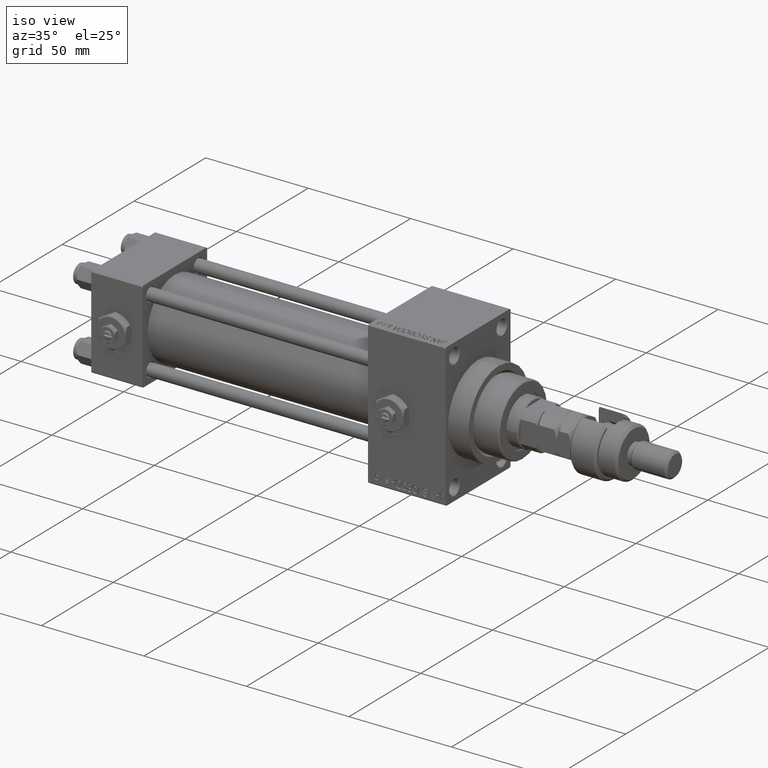
[diagram: clean part render]
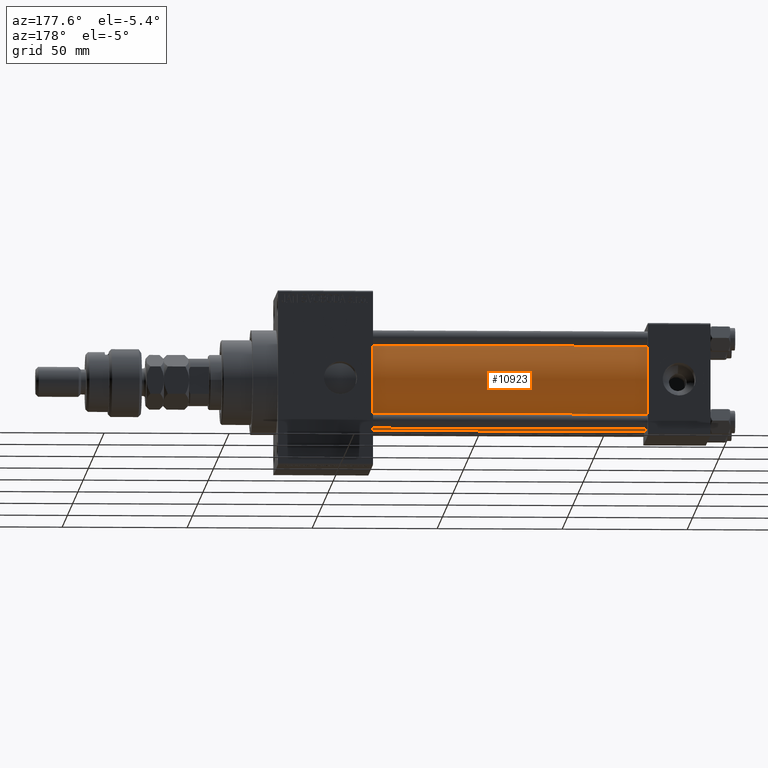
[diagram: tour spotlight — one face highlighted and labeled with its STEP entity id]
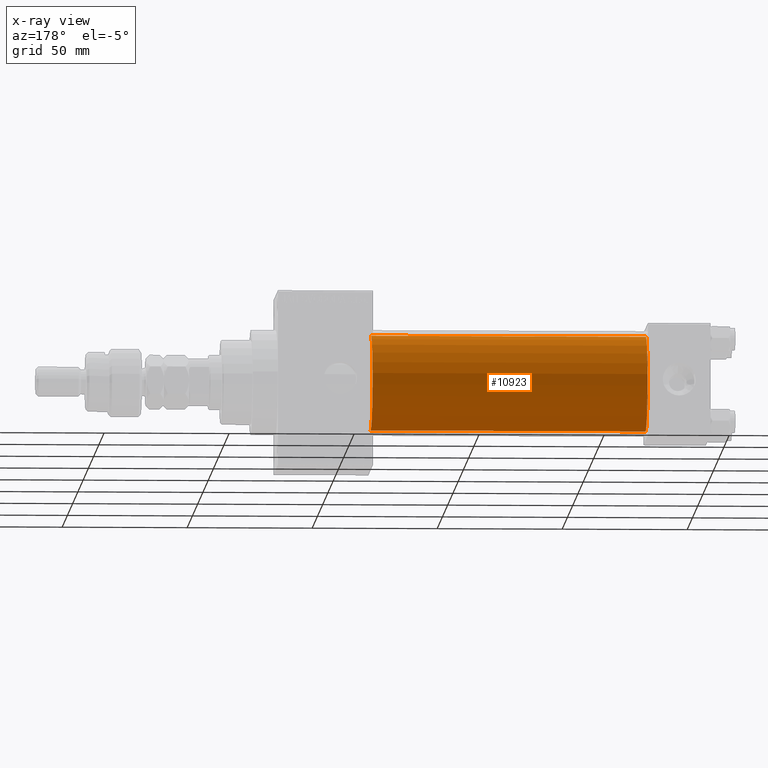
[diagram: x-ray of the same camera — body ghosted, this tour face saturated]
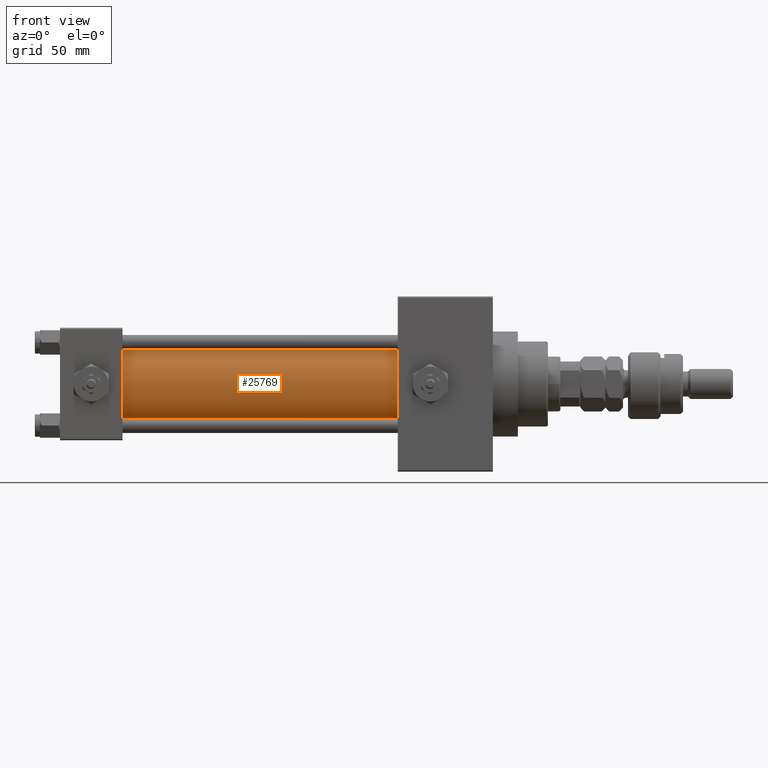
[diagram: tour spotlight — one face highlighted and labeled with its STEP entity id]
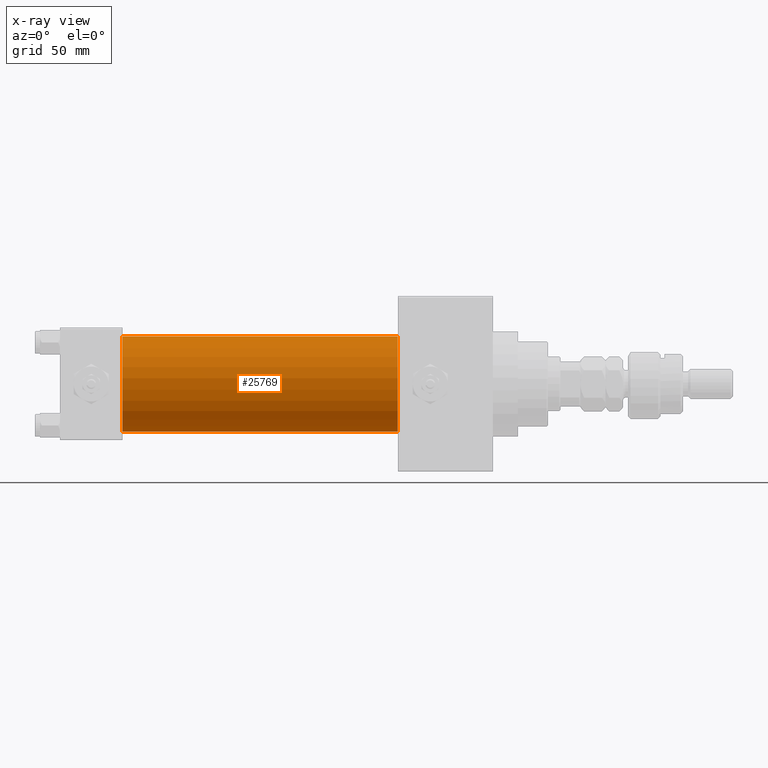
[diagram: x-ray of the same camera — body ghosted, this tour face saturated]
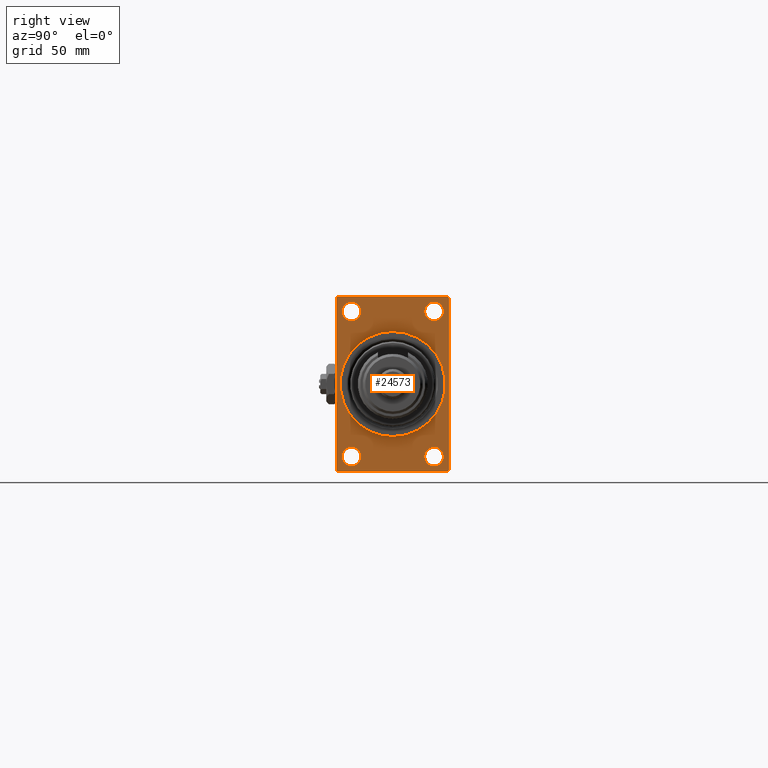
[diagram: tour spotlight — one face highlighted and labeled with its STEP entity id]
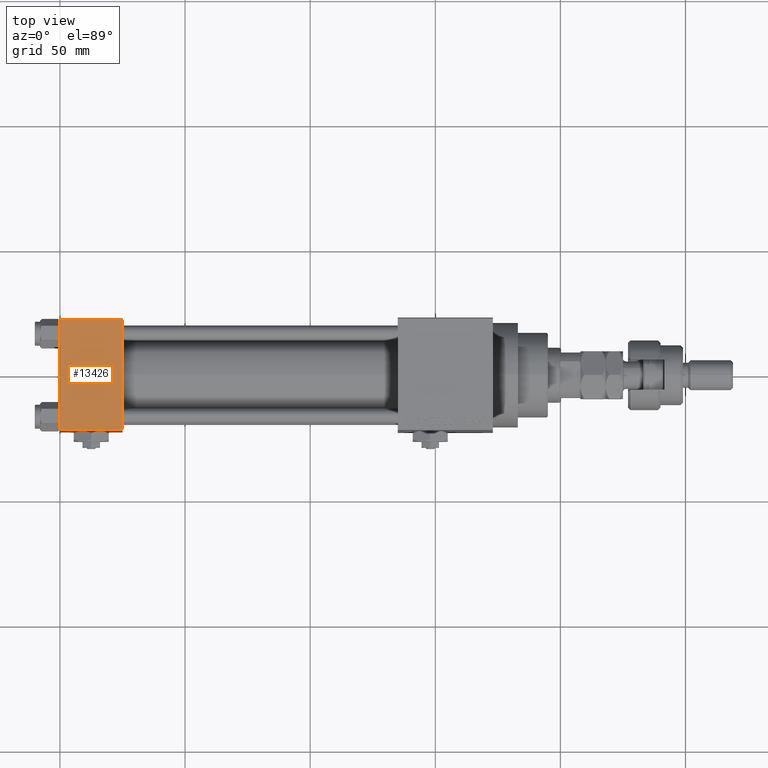
[diagram: tour spotlight — one face highlighted and labeled with its STEP entity id]
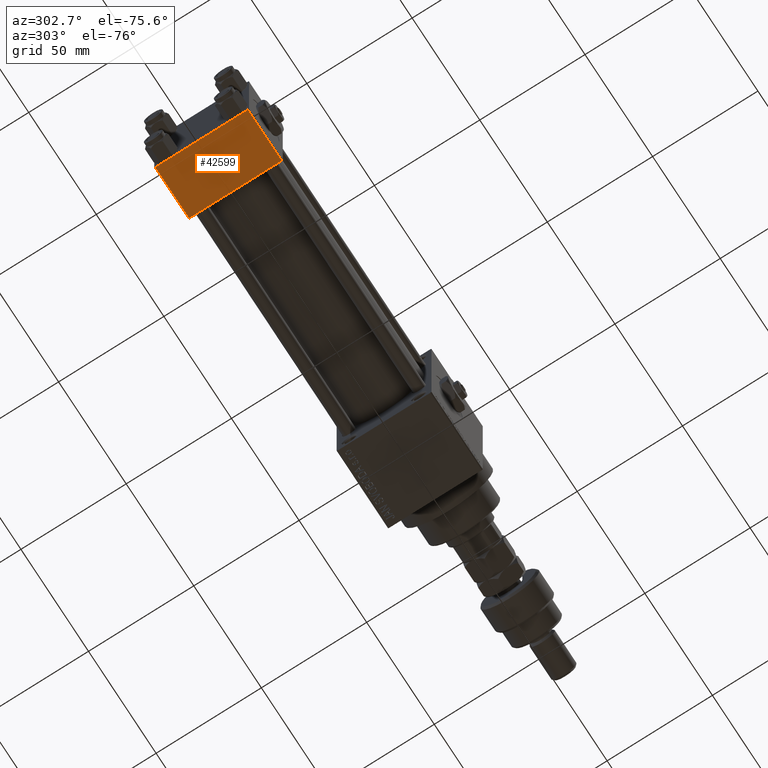
[diagram: tour spotlight — one face highlighted and labeled with its STEP entity id]
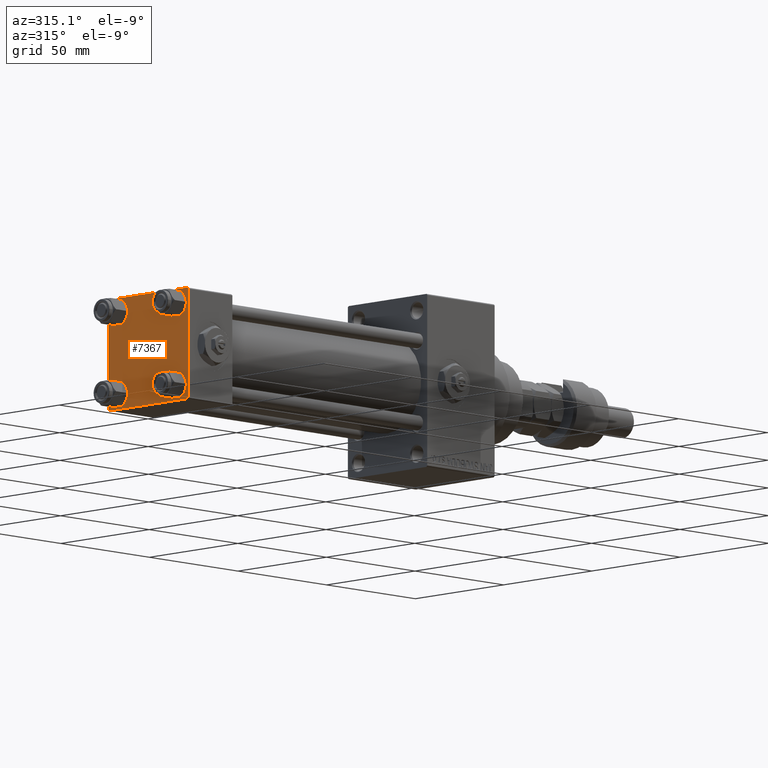
[diagram: tour spotlight — one face highlighted and labeled with its STEP entity id]
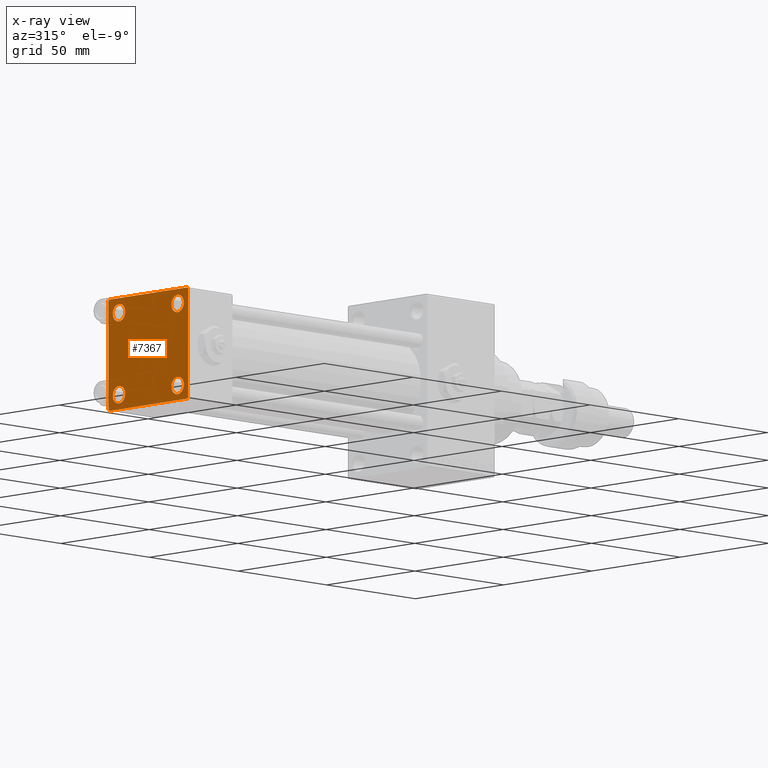
[diagram: x-ray of the same camera — body ghosted, this tour face saturated]
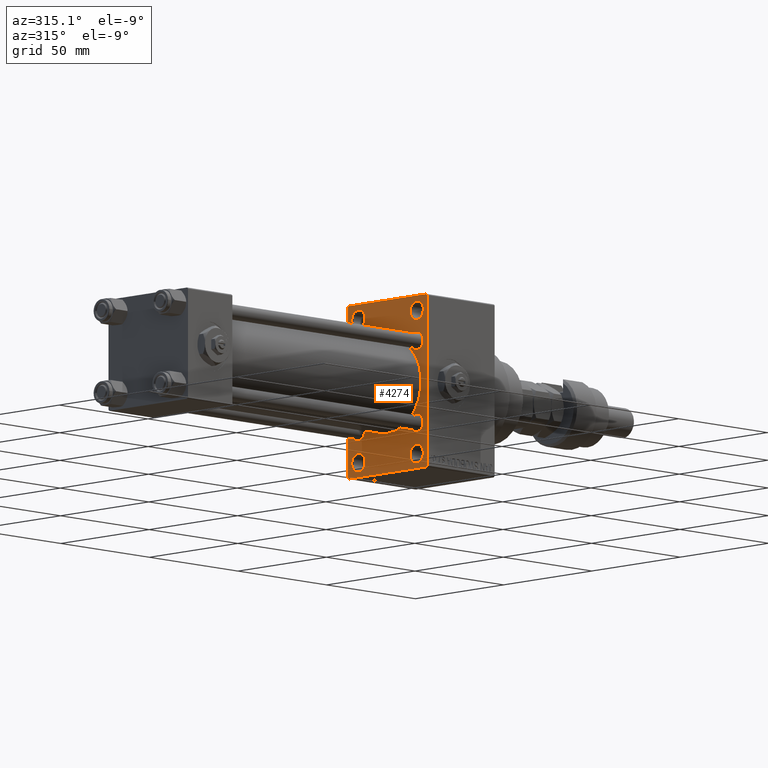
[diagram: tour spotlight — one face highlighted and labeled with its STEP entity id]
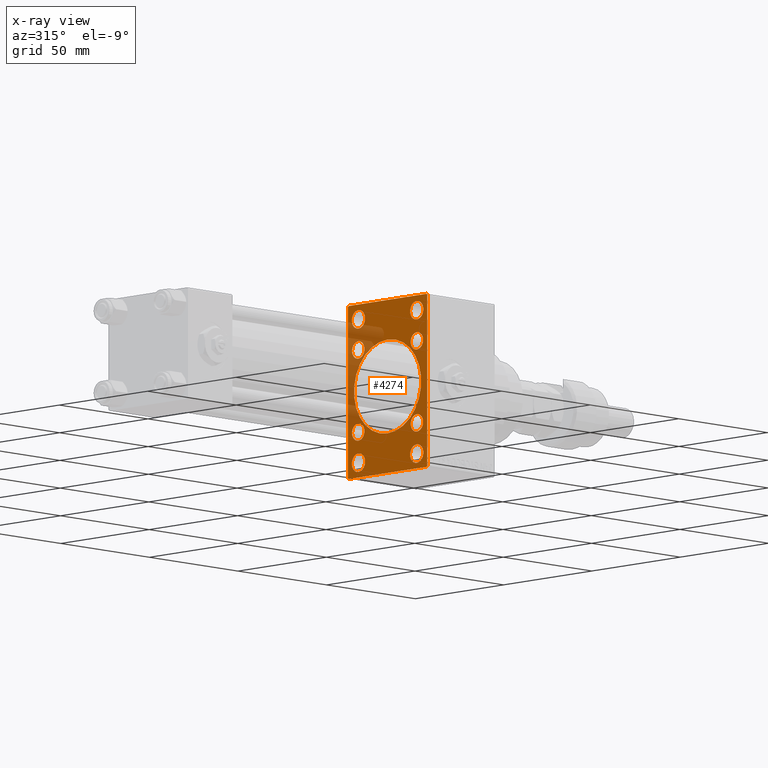
[diagram: x-ray of the same camera — body ghosted, this tour face saturated]
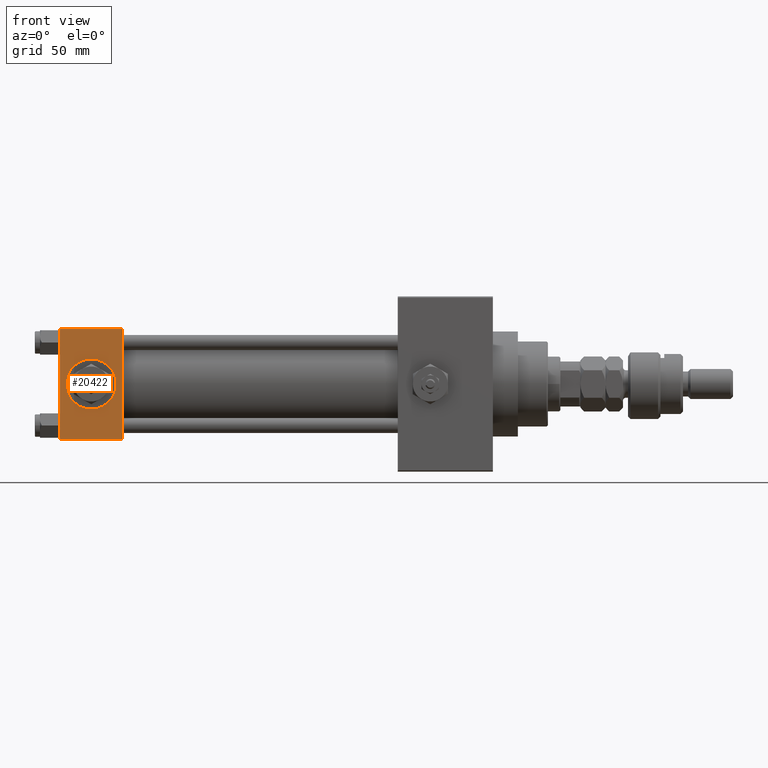
[diagram: tour spotlight — one face highlighted and labeled with its STEP entity id]
A machine part: a face-by-face anatomy tour. The part has 1289 B-rep faces; the first image is the clean iso view, then the 8 largest visible faces are spotlighted one at a time (largest first), each with its STEP entity span.

Face 1 — auxiliary view, entity #10923. An x-ray twin of the same camera follows (body ghosted, this face saturated) — the face is partly hidden behind the body. In plain terms, the highlighted cylindrical surface (partial cylindrical patch) has radius 19 mm, axis along (-1, -0, -0).
Definition (entity closure, byte-faithful):
#225 = DIRECTION ( 'NONE',  ( -1.000000000000000000, -0.000000000000000000, -0.000000000000000000 ) ) ;
#5106 = VECTOR ( 'NONE', #225, 1000.000000000000000 ) ;
#6768 = LINE ( 'NONE', #19390, #28159 ) ;
#6943 = ORIENTED_EDGE ( 'NONE', *, *, #47368, .F. ) ;
#10207 = FACE_OUTER_BOUND ( 'NONE', #17288, .T. ) ;
#10923 = ADVANCED_FACE ( 'NONE', ( #10207 ), #25740, .T. ) ;
#10973 = CARTESIAN_POINT ( 'NONE',  ( 135.0000000000000000, -2.752562955852396712E-16, -19.00000000000000000 ) ) ;
#11598 = AXIS2_PLACEMENT_3D ( 'NONE', #38309, #14411, #50635 ) ;
#12531 = EDGE_CURVE ( 'NONE', #35515, #47757, #19696, .T. ) ;
#12829 = VERTEX_POINT ( 'NONE', #10973 ) ;
#14411 = DIRECTION ( 'NONE',  ( -1.000000000000000000, -0.000000000000000000, -0.000000000000000000 ) ) ;
#17271 = CIRCLE ( 'NONE', #50808, 19.00000000000000000 ) ;
#17288 = EDGE_LOOP ( 'NONE', ( #6943, #40762, #50017, #21708 ) ) ;
#19390 = CARTESIAN_POINT ( 'NONE',  ( 135.0000000000000000, -2.752562955852396712E-16, -19.00000000000000000 ) ) ;
#19696 = LINE ( 'NONE', #40417, #5106 ) ;
#20110 = CARTESIAN_POINT ( 'NONE',  ( 24.99999999999999289, -2.602085213965210642E-15, 19.00000000000000000 ) ) ;
#21708 = ORIENTED_EDGE ( 'NONE', *, *, #12531, .F. ) ;
#21783 = DIRECTION ( 'NONE',  ( 1.000000000000000000, 0.000000000000000000, 0.000000000000000000 ) ) ;
#23966 = AXIS2_PLACEMENT_3D ( 'NONE', #49993, #30048, #37404 ) ;
#25740 = CYLINDRICAL_SURFACE ( 'NONE', #11598, 19.00000000000000000 ) ;
#26779 = CARTESIAN_POINT ( 'NONE',  ( 135.0000000000000000, -2.602085213965210642E-15, 0.000000000000000000 ) ) ;
#27217 = CARTESIAN_POINT ( 'NONE',  ( 135.0000000000000000, -2.602085213965210642E-15, 19.00000000000000000 ) ) ;
#28159 = VECTOR ( 'NONE', #31200, 1000.000000000000000 ) ;
#30048 = DIRECTION ( 'NONE',  ( 1.000000000000000000, -0.000000000000000000, 0.000000000000000000 ) ) ;
#30708 = CARTESIAN_POINT ( 'NONE',  ( 24.99999999999999289, -2.752562955852396712E-16, -19.00000000000000000 ) ) ;
#31200 = DIRECTION ( 'NONE',  ( -1.000000000000000000, -0.000000000000000000, -0.000000000000000000 ) ) ;
#35515 = VERTEX_POINT ( 'NONE', #27217 ) ;
#37404 = DIRECTION ( 'NONE',  ( 0.000000000000000000, 0.000000000000000000, 1.000000000000000000 ) ) ;
#38309 = CARTESIAN_POINT ( 'NONE',  ( 135.0000000000000000, -2.602085213965210642E-15, 0.000000000000000000 ) ) ;
#40417 = CARTESIAN_POINT ( 'NONE',  ( 135.0000000000000000, -2.602085213965210642E-15, 19.00000000000000000 ) ) ;
#40762 = ORIENTED_EDGE ( 'NONE', *, *, #46597, .T. ) ;
#43523 = EDGE_CURVE ( 'NONE', #47451, #47757, #51636, .T. ) ;
#46429 = DIRECTION ( 'NONE',  ( 0.000000000000000000, 0.000000000000000000, -1.000000000000000000 ) ) ;
#46597 = EDGE_CURVE ( 'NONE', #12829, #47451, #6768, .T. ) ;
#47368 = EDGE_CURVE ( 'NONE', #12829, #35515, #17271, .T. ) ;
#47451 = VERTEX_POINT ( 'NONE', #30708 ) ;
#47757 = VERTEX_POINT ( 'NONE', #20110 ) ;
#49993 = CARTESIAN_POINT ( 'NONE',  ( 24.99999999999999289, -2.602085213965210642E-15, 0.000000000000000000 ) ) ;
#50017 = ORIENTED_EDGE ( 'NONE', *, *, #43523, .T. ) ;
#50635 = DIRECTION ( 'NONE',  ( 0.000000000000000000, 0.000000000000000000, 1.000000000000000000 ) ) ;
#50808 = AXIS2_PLACEMENT_3D ( 'NONE', #26779, #21783, #46429 ) ;
#51636 = CIRCLE ( 'NONE', #23966, 19.00000000000000000 ) ;

Face 2 — front view, entity #25769. An x-ray twin of the same camera follows (body ghosted, this face saturated) — the face is partly hidden behind the body. In plain terms, the highlighted cylindrical surface (partial cylindrical patch) has radius 19 mm, axis along (-1, -0, -0).
Definition (entity closure, byte-faithful):
#225 = DIRECTION ( 'NONE',  ( -1.000000000000000000, -0.000000000000000000, -0.000000000000000000 ) ) ;
#2353 = DIRECTION ( 'NONE',  ( 1.000000000000000000, -0.000000000000000000, 0.000000000000000000 ) ) ;
#5106 = VECTOR ( 'NONE', #225, 1000.000000000000000 ) ;
#6768 = LINE ( 'NONE', #19390, #28159 ) ;
#7987 = AXIS2_PLACEMENT_3D ( 'NONE', #40089, #9316, #21932 ) ;
#8047 = CYLINDRICAL_SURFACE ( 'NONE', #7987, 19.00000000000000000 ) ;
#9316 = DIRECTION ( 'NONE',  ( -1.000000000000000000, -0.000000000000000000, -0.000000000000000000 ) ) ;
#9771 = ORIENTED_EDGE ( 'NONE', *, *, #16000, .F. ) ;
#10973 = CARTESIAN_POINT ( 'NONE',  ( 135.0000000000000000, -2.752562955852396712E-16, -19.00000000000000000 ) ) ;
#12520 = CARTESIAN_POINT ( 'NONE',  ( 135.0000000000000000, -2.602085213965210642E-15, 0.000000000000000000 ) ) ;
#12531 = EDGE_CURVE ( 'NONE', #35515, #47757, #19696, .T. ) ;
#12829 = VERTEX_POINT ( 'NONE', #10973 ) ;
#15583 = EDGE_CURVE ( 'NONE', #47757, #47451, #47187, .T. ) ;
#16000 = EDGE_CURVE ( 'NONE', #35515, #12829, #43850, .T. ) ;
#19390 = CARTESIAN_POINT ( 'NONE',  ( 135.0000000000000000, -2.752562955852396712E-16, -19.00000000000000000 ) ) ;
#19540 = AXIS2_PLACEMENT_3D ( 'NONE', #12520, #25376, #48226 ) ;
#19696 = LINE ( 'NONE', #40417, #5106 ) ;
#20110 = CARTESIAN_POINT ( 'NONE',  ( 24.99999999999999289, -2.602085213965210642E-15, 19.00000000000000000 ) ) ;
#21932 = DIRECTION ( 'NONE',  ( 0.000000000000000000, 0.000000000000000000, 1.000000000000000000 ) ) ;
#22864 = CARTESIAN_POINT ( 'NONE',  ( 24.99999999999999289, -2.602085213965210642E-15, 0.000000000000000000 ) ) ;
#23754 = AXIS2_PLACEMENT_3D ( 'NONE', #22864, #2353, #45959 ) ;
#25376 = DIRECTION ( 'NONE',  ( 1.000000000000000000, 0.000000000000000000, 0.000000000000000000 ) ) ;
#25769 = ADVANCED_FACE ( 'NONE', ( #44018 ), #8047, .T. ) ;
#27217 = CARTESIAN_POINT ( 'NONE',  ( 135.0000000000000000, -2.602085213965210642E-15, 19.00000000000000000 ) ) ;
#28159 = VECTOR ( 'NONE', #31200, 1000.000000000000000 ) ;
#30507 = ORIENTED_EDGE ( 'NONE', *, *, #46597, .F. ) ;
#30708 = CARTESIAN_POINT ( 'NONE',  ( 24.99999999999999289, -2.752562955852396712E-16, -19.00000000000000000 ) ) ;
#31200 = DIRECTION ( 'NONE',  ( -1.000000000000000000, -0.000000000000000000, -0.000000000000000000 ) ) ;
#32510 = ORIENTED_EDGE ( 'NONE', *, *, #12531, .T. ) ;
#35515 = VERTEX_POINT ( 'NONE', #27217 ) ;
#40089 = CARTESIAN_POINT ( 'NONE',  ( 135.0000000000000000, -2.602085213965210642E-15, 0.000000000000000000 ) ) ;
#40417 = CARTESIAN_POINT ( 'NONE',  ( 135.0000000000000000, -2.602085213965210642E-15, 19.00000000000000000 ) ) ;
#43850 = CIRCLE ( 'NONE', #19540, 19.00000000000000000 ) ;
#44018 = FACE_OUTER_BOUND ( 'NONE', #51501, .T. ) ;
#45959 = DIRECTION ( 'NONE',  ( 0.000000000000000000, 0.000000000000000000, 1.000000000000000000 ) ) ;
#46597 = EDGE_CURVE ( 'NONE', #12829, #47451, #6768, .T. ) ;
#47187 = CIRCLE ( 'NONE', #23754, 19.00000000000000000 ) ;
#47451 = VERTEX_POINT ( 'NONE', #30708 ) ;
#47757 = VERTEX_POINT ( 'NONE', #20110 ) ;
#48226 = DIRECTION ( 'NONE',  ( 0.000000000000000000, 0.000000000000000000, -1.000000000000000000 ) ) ;
#49586 = ORIENTED_EDGE ( 'NONE', *, *, #15583, .T. ) ;
#51501 = EDGE_LOOP ( 'NONE', ( #30507, #9771, #32510, #49586 ) ) ;

Face 3 — right view, entity #24573. In plain terms, the highlighted planar face has unit normal (-1, 0, 0).
Definition (entity closure, byte-faithful):
#550 = EDGE_CURVE ( 'NONE', #49647, #10765, #27229, .T. ) ;
#906 = DIRECTION ( 'NONE',  ( 1.000000000000000000, 0.000000000000000000, 0.000000000000000000 ) ) ;
#1037 = DIRECTION ( 'NONE',  ( 1.000000000000000000, 0.000000000000000000, 0.000000000000000000 ) ) ;
#1635 = ORIENTED_EDGE ( 'NONE', *, *, #31822, .T. ) ;
#1739 = FACE_BOUND ( 'NONE', #5085, .T. ) ;
#1862 = DIRECTION ( 'NONE',  ( 0.000000000000000000, 0.000000000000000000, -1.000000000000000000 ) ) ;
#1950 = CARTESIAN_POINT ( 'NONE',  ( 173.0000000000000284, -16.50000000000000000, 32.75000000000017764 ) ) ;
#2093 = CIRCLE ( 'NONE', #44884, 3.750000000000166533 ) ;
#2134 = LINE ( 'NONE', #42052, #8697 ) ;
#2380 = EDGE_CURVE ( 'NONE', #19977, #21798, #20119, .T. ) ;
#2573 = VERTEX_POINT ( 'NONE', #19042 ) ;
#2873 = ORIENTED_EDGE ( 'NONE', *, *, #6862, .F. ) ;
#3093 = VECTOR ( 'NONE', #16739, 1000.000000000000000 ) ;
#3861 = LINE ( 'NONE', #40111, #3093 ) ;
#4431 = CIRCLE ( 'NONE', #22078, 3.750000000000166533 ) ;
#5085 = EDGE_LOOP ( 'NONE', ( #27075, #15591 ) ) ;
#5166 = FACE_BOUND ( 'NONE', #12021, .T. ) ;
#5185 = VERTEX_POINT ( 'NONE', #14622 ) ;
#5398 = AXIS2_PLACEMENT_3D ( 'NONE', #49936, #42043, #38109 ) ;
#5632 = VERTEX_POINT ( 'NONE', #22716 ) ;
#5747 = ORIENTED_EDGE ( 'NONE', *, *, #45362, .F. ) ;
#6059 = DIRECTION ( 'NONE',  ( 0.000000000000000000, 0.000000000000000000, -1.000000000000000000 ) ) ;
#6677 = VERTEX_POINT ( 'NONE', #43879 ) ;
#6809 = CARTESIAN_POINT ( 'NONE',  ( 173.0000000000000284, -22.50000000000000355, 34.50000000000000000 ) ) ;
#6862 = EDGE_CURVE ( 'NONE', #2573, #5632, #8090, .T. ) ;
#8090 = CIRCLE ( 'NONE', #39962, 21.00000000000000000 ) ;
#8292 = DIRECTION ( 'NONE',  ( 0.000000000000000000, 0.7071067811865474617, -0.7071067811865474617 ) ) ;
#8638 = ORIENTED_EDGE ( 'NONE', *, *, #44944, .T. ) ;
#8697 = VECTOR ( 'NONE', #6059, 1000.000000000000000 ) ;
#9109 = EDGE_CURVE ( 'NONE', #14317, #14693, #3861, .T. ) ;
#9151 = EDGE_CURVE ( 'NONE', #10765, #49647, #39182, .T. ) ;
#9172 = CARTESIAN_POINT ( 'NONE',  ( 173.0000000000000284, 21.99999999999999645, 35.00000000000000000 ) ) ;
#9457 = EDGE_CURVE ( 'NONE', #35337, #10059, #35877, .T. ) ;
#9501 = LINE ( 'NONE', #37608, #48134 ) ;
#9637 = FACE_OUTER_BOUND ( 'NONE', #29899, .T. ) ;
#9651 = VECTOR ( 'NONE', #44828, 1000.000000000000000 ) ;
#10059 = VERTEX_POINT ( 'NONE', #20746 ) ;
#10765 = VERTEX_POINT ( 'NONE', #37845 ) ;
#11315 = CIRCLE ( 'NONE', #18002, 21.00000000000000000 ) ;
#11316 = ORIENTED_EDGE ( 'NONE', *, *, #550, .T. ) ;
#11378 = CARTESIAN_POINT ( 'NONE',  ( 173.0000000000000284, -22.50000000000000355, -34.50000000000000000 ) ) ;
#11594 = ORIENTED_EDGE ( 'NONE', *, *, #9151, .T. ) ;
#11795 = CARTESIAN_POINT ( 'NONE',  ( 173.0000000000000284, 16.50000000000000000, 29.00000000000000355 ) ) ;
#11882 = ORIENTED_EDGE ( 'NONE', *, *, #9109, .T. ) ;
#12021 = EDGE_LOOP ( 'NONE', ( #2873, #5747 ) ) ;
#12382 = DIRECTION ( 'NONE',  ( 0.000000000000000000, 0.000000000000000000, 1.000000000000000000 ) ) ;
#12812 = FACE_BOUND ( 'NONE', #29383, .T. ) ;
#13085 = DIRECTION ( 'NONE',  ( -0.000000000000000000, 0.000000000000000000, 1.000000000000000000 ) ) ;
#13558 = CARTESIAN_POINT ( 'NONE',  ( 173.0000000000000284, 16.50000000000000000, 32.75000000000017764 ) ) ;
#13579 = FACE_BOUND ( 'NONE', #18294, .T. ) ;
#14317 = VERTEX_POINT ( 'NONE', #22406 ) ;
#14622 = CARTESIAN_POINT ( 'NONE',  ( 173.0000000000000284, 16.50000000000000000, -32.75000000000017053 ) ) ;
#14693 = VERTEX_POINT ( 'NONE', #6809 ) ;
#15222 = VERTEX_POINT ( 'NONE', #31309 ) ;
#15591 = ORIENTED_EDGE ( 'NONE', *, *, #42176, .T. ) ;
#15637 = AXIS2_PLACEMENT_3D ( 'NONE', #38691, #22965, #51295 ) ;
#16185 = CARTESIAN_POINT ( 'NONE',  ( 173.0000000000000284, -22.00000000000000355, -35.00000000000000000 ) ) ;
#16543 = AXIS2_PLACEMENT_3D ( 'NONE', #36684, #32738, #19634 ) ;
#16739 = DIRECTION ( 'NONE',  ( -0.000000000000000000, -0.7071067811865279218, -0.7071067811865671127 ) ) ;
#17052 = EDGE_CURVE ( 'NONE', #15222, #25846, #4431, .T. ) ;
#17258 = DIRECTION ( 'NONE',  ( -0.000000000000000000, 0.7071067811865279218, 0.7071067811865671127 ) ) ;
#18002 = AXIS2_PLACEMENT_3D ( 'NONE', #33479, #906, #41104 ) ;
#18294 = EDGE_LOOP ( 'NONE', ( #11594, #11316 ) ) ;
#19042 = CARTESIAN_POINT ( 'NONE',  ( 173.0000000000000284, 0.000000000000000000, 21.00000000000000000 ) ) ;
#19420 = ORIENTED_EDGE ( 'NONE', *, *, #31637, .F. ) ;
#19634 = DIRECTION ( 'NONE',  ( 0.000000000000000000, 0.000000000000000000, 1.000000000000000000 ) ) ;
#19949 = AXIS2_PLACEMENT_3D ( 'NONE', #41585, #37392, #29275 ) ;
#19977 = VERTEX_POINT ( 'NONE', #11378 ) ;
#20119 = LINE ( 'NONE', #16185, #39723 ) ;
#20302 = LINE ( 'NONE', #37084, #48235 ) ;
#20746 = CARTESIAN_POINT ( 'NONE',  ( 173.0000000000000284, 16.50000000000000000, 25.24999999999983658 ) ) ;
#20836 = EDGE_CURVE ( 'NONE', #36161, #46684, #29094, .T. ) ;
#21027 = ORIENTED_EDGE ( 'NONE', *, *, #22519, .T. ) ;
#21064 = ORIENTED_EDGE ( 'NONE', *, *, #48406, .T. ) ;
#21798 = VERTEX_POINT ( 'NONE', #49107 ) ;
#22014 = CARTESIAN_POINT ( 'NONE',  ( 173.0000000000000284, -16.50000000000000000, -28.99999999999999289 ) ) ;
#22078 = AXIS2_PLACEMENT_3D ( 'NONE', #22014, #26502, #42214 ) ;
#22389 = EDGE_CURVE ( 'NONE', #39489, #46684, #9501, .T. ) ;
#22406 = CARTESIAN_POINT ( 'NONE',  ( 173.0000000000000284, -22.00000000000001776, 35.00000000000000000 ) ) ;
#22519 = EDGE_CURVE ( 'NONE', #14693, #19977, #2134, .T. ) ;
#22716 = CARTESIAN_POINT ( 'NONE',  ( 173.0000000000000284, 2.571758278209441661E-15, -21.00000000000000000 ) ) ;
#22812 = EDGE_LOOP ( 'NONE', ( #21064, #38668 ) ) ;
#22965 = DIRECTION ( 'NONE',  ( -1.000000000000000000, -0.000000000000000000, -0.000000000000000000 ) ) ;
#23262 = DIRECTION ( 'NONE',  ( 0.000000000000000000, -1.000000000000000000, 0.000000000000000000 ) ) ;
#23878 = DIRECTION ( 'NONE',  ( -1.000000000000000000, -0.000000000000000000, -0.000000000000000000 ) ) ;
#24573 = ADVANCED_FACE ( 'NONE', ( #13579, #12812, #1739, #49554, #5166, #9637 ), #49809, .F. ) ;
#25690 = DIRECTION ( 'NONE',  ( -1.000000000000000000, 0.000000000000000000, -0.000000000000000000 ) ) ;
#25846 = VERTEX_POINT ( 'NONE', #34003 ) ;
#25868 = EDGE_CURVE ( 'NONE', #40434, #14317, #47389, .T. ) ;
#26502 = DIRECTION ( 'NONE',  ( -1.000000000000000000, -0.000000000000000000, -0.000000000000000000 ) ) ;
#27075 = ORIENTED_EDGE ( 'NONE', *, *, #48041, .T. ) ;
#27229 = CIRCLE ( 'NONE', #5398, 3.750000000000166533 ) ;
#28072 = DIRECTION ( 'NONE',  ( 0.000000000000000000, 0.000000000000000000, 1.000000000000000000 ) ) ;
#28463 = DIRECTION ( 'NONE',  ( 0.000000000000000000, -0.7071067811865474617, 0.7071067811865474617 ) ) ;
#29094 = LINE ( 'NONE', #41388, #36328 ) ;
#29275 = DIRECTION ( 'NONE',  ( 0.000000000000000000, 0.000000000000000000, 1.000000000000000000 ) ) ;
#29383 = EDGE_LOOP ( 'NONE', ( #34960, #8638 ) ) ;
#29608 = CARTESIAN_POINT ( 'NONE',  ( 173.0000000000000284, 0.000000000000000000, 0.000000000000000000 ) ) ;
#29899 = EDGE_LOOP ( 'NONE', ( #21027, #34940, #19420, #43289, #43050, #1635, #46495, #11882 ) ) ;
#31309 = CARTESIAN_POINT ( 'NONE',  ( 173.0000000000000284, -16.50000000000000000, -32.75000000000017053 ) ) ;
#31637 = EDGE_CURVE ( 'NONE', #36161, #21798, #45864, .T. ) ;
#31822 = EDGE_CURVE ( 'NONE', #39489, #40434, #20302, .T. ) ;
#32404 = AXIS2_PLACEMENT_3D ( 'NONE', #11795, #23878, #28072 ) ;
#32738 = DIRECTION ( 'NONE',  ( -1.000000000000000000, -0.000000000000000000, -0.000000000000000000 ) ) ;
#33075 = CIRCLE ( 'NONE', #37269, 3.750000000000166533 ) ;
#33479 = CARTESIAN_POINT ( 'NONE',  ( 173.0000000000000284, 0.000000000000000000, 0.000000000000000000 ) ) ;
#34003 = CARTESIAN_POINT ( 'NONE',  ( 173.0000000000000284, -16.50000000000000000, -25.24999999999982592 ) ) ;
#34940 = ORIENTED_EDGE ( 'NONE', *, *, #2380, .T. ) ;
#34960 = ORIENTED_EDGE ( 'NONE', *, *, #17052, .T. ) ;
#35337 = VERTEX_POINT ( 'NONE', #13558 ) ;
#35877 = CIRCLE ( 'NONE', #19949, 3.750000000000169642 ) ;
#36021 = CARTESIAN_POINT ( 'NONE',  ( 173.0000000000000284, 16.50000000000000000, -28.99999999999999289 ) ) ;
#36161 = VERTEX_POINT ( 'NONE', #45105 ) ;
#36328 = VECTOR ( 'NONE', #17258, 1000.000000000000000 ) ;
#36684 = CARTESIAN_POINT ( 'NONE',  ( 173.0000000000000284, -16.50000000000000000, 29.00000000000000711 ) ) ;
#37084 = CARTESIAN_POINT ( 'NONE',  ( 173.0000000000000284, 21.99999999999999645, 35.00000000000000000 ) ) ;
#37269 = AXIS2_PLACEMENT_3D ( 'NONE', #42776, #43033, #50924 ) ;
#37392 = DIRECTION ( 'NONE',  ( -1.000000000000000000, -0.000000000000000000, -0.000000000000000000 ) ) ;
#37608 = CARTESIAN_POINT ( 'NONE',  ( 173.0000000000000284, 22.49999999999999645, 35.00000000000000000 ) ) ;
#37845 = CARTESIAN_POINT ( 'NONE',  ( 173.0000000000000284, -16.50000000000000000, 25.24999999999984368 ) ) ;
#38109 = DIRECTION ( 'NONE',  ( 0.000000000000000000, 0.000000000000000000, 1.000000000000000000 ) ) ;
#38668 = ORIENTED_EDGE ( 'NONE', *, *, #9457, .T. ) ;
#38691 = CARTESIAN_POINT ( 'NONE',  ( 173.0000000000000284, 16.50000000000000000, -28.99999999999999289 ) ) ;
#38711 = CARTESIAN_POINT ( 'NONE',  ( 173.0000000000000284, 22.49999999999999645, 35.00000000000000000 ) ) ;
#39182 = CIRCLE ( 'NONE', #16543, 3.750000000000166533 ) ;
#39489 = VERTEX_POINT ( 'NONE', #43486 ) ;
#39723 = VECTOR ( 'NONE', #8292, 1000.000000000000114 ) ;
#39962 = AXIS2_PLACEMENT_3D ( 'NONE', #49377, #1037, #41231 ) ;
#40111 = CARTESIAN_POINT ( 'NONE',  ( 173.0000000000000284, -22.50000000000000355, 34.50000000000000000 ) ) ;
#40434 = VERTEX_POINT ( 'NONE', #9172 ) ;
#41104 = DIRECTION ( 'NONE',  ( 0.000000000000000000, 0.000000000000000000, -1.000000000000000000 ) ) ;
#41152 = CARTESIAN_POINT ( 'NONE',  ( 173.0000000000000284, 22.49999999999999645, -35.00000000000000000 ) ) ;
#41231 = DIRECTION ( 'NONE',  ( 0.000000000000000000, 0.000000000000000000, -1.000000000000000000 ) ) ;
#41388 = CARTESIAN_POINT ( 'NONE',  ( 173.0000000000000284, 22.49999999999999645, -34.50000000000000000 ) ) ;
#41585 = CARTESIAN_POINT ( 'NONE',  ( 173.0000000000000284, 16.50000000000000000, 29.00000000000000355 ) ) ;
#42043 = DIRECTION ( 'NONE',  ( -1.000000000000000000, -0.000000000000000000, -0.000000000000000000 ) ) ;
#42052 = CARTESIAN_POINT ( 'NONE',  ( 173.0000000000000284, -22.50000000000000355, 35.00000000000000000 ) ) ;
#42176 = EDGE_CURVE ( 'NONE', #6677, #5185, #2093, .T. ) ;
#42214 = DIRECTION ( 'NONE',  ( 0.000000000000000000, 0.000000000000000000, 1.000000000000000000 ) ) ;
#42776 = CARTESIAN_POINT ( 'NONE',  ( 173.0000000000000284, -16.50000000000000000, -28.99999999999999289 ) ) ;
#43033 = DIRECTION ( 'NONE',  ( -1.000000000000000000, -0.000000000000000000, -0.000000000000000000 ) ) ;
#43050 = ORIENTED_EDGE ( 'NONE', *, *, #22389, .F. ) ;
#43289 = ORIENTED_EDGE ( 'NONE', *, *, #20836, .T. ) ;
#43486 = CARTESIAN_POINT ( 'NONE',  ( 173.0000000000000284, 22.49999999999999645, 34.50000000000000000 ) ) ;
#43879 = CARTESIAN_POINT ( 'NONE',  ( 173.0000000000000284, 16.50000000000000000, -25.24999999999982592 ) ) ;
#44816 = CARTESIAN_POINT ( 'NONE',  ( 173.0000000000000284, 22.49999999999999645, -34.50000000000000000 ) ) ;
#44828 = DIRECTION ( 'NONE',  ( 0.000000000000000000, -1.000000000000000000, 0.000000000000000000 ) ) ;
#44884 = AXIS2_PLACEMENT_3D ( 'NONE', #36021, #48599, #12382 ) ;
#44944 = EDGE_CURVE ( 'NONE', #25846, #15222, #33075, .T. ) ;
#45105 = CARTESIAN_POINT ( 'NONE',  ( 173.0000000000000284, 22.00000000000002132, -35.00000000000000000 ) ) ;
#45362 = EDGE_CURVE ( 'NONE', #5632, #2573, #11315, .T. ) ;
#45808 = CIRCLE ( 'NONE', #32404, 3.750000000000169642 ) ;
#45864 = LINE ( 'NONE', #41152, #9651 ) ;
#46468 = VECTOR ( 'NONE', #23262, 1000.000000000000000 ) ;
#46495 = ORIENTED_EDGE ( 'NONE', *, *, #25868, .T. ) ;
#46684 = VERTEX_POINT ( 'NONE', #44816 ) ;
#47389 = LINE ( 'NONE', #38711, #46468 ) ;
#48041 = EDGE_CURVE ( 'NONE', #5185, #6677, #50849, .T. ) ;
#48134 = VECTOR ( 'NONE', #1862, 1000.000000000000000 ) ;
#48235 = VECTOR ( 'NONE', #28463, 1000.000000000000114 ) ;
#48406 = EDGE_CURVE ( 'NONE', #10059, #35337, #45808, .T. ) ;
#48599 = DIRECTION ( 'NONE',  ( -1.000000000000000000, -0.000000000000000000, -0.000000000000000000 ) ) ;
#49044 = AXIS2_PLACEMENT_3D ( 'NONE', #29608, #25690, #13085 ) ;
#49107 = CARTESIAN_POINT ( 'NONE',  ( 173.0000000000000284, -21.99999999999998934, -35.00000000000000000 ) ) ;
#49377 = CARTESIAN_POINT ( 'NONE',  ( 173.0000000000000284, 0.000000000000000000, 0.000000000000000000 ) ) ;
#49554 = FACE_BOUND ( 'NONE', #22812, .T. ) ;
#49647 = VERTEX_POINT ( 'NONE', #1950 ) ;
#49809 = PLANE ( 'NONE',  #49044 ) ;
#49936 = CARTESIAN_POINT ( 'NONE',  ( 173.0000000000000284, -16.50000000000000000, 29.00000000000000711 ) ) ;
#50849 = CIRCLE ( 'NONE', #15637, 3.750000000000166533 ) ;
#50924 = DIRECTION ( 'NONE',  ( 0.000000000000000000, 0.000000000000000000, 1.000000000000000000 ) ) ;
#51295 = DIRECTION ( 'NONE',  ( 0.000000000000000000, 0.000000000000000000, 1.000000000000000000 ) ) ;

Face 4 — top view, entity #13426. In plain terms, the highlighted planar face has unit normal (0, 0, -1).
Definition (entity closure, byte-faithful):
#331 = LINE ( 'NONE', #16388, #10507 ) ;
#333 = CARTESIAN_POINT ( 'NONE',  ( 25.00000000000000000, 22.50000000000000000, 22.50000000000000355 ) ) ;
#769 = VERTEX_POINT ( 'NONE', #39168 ) ;
#1855 = VECTOR ( 'NONE', #3322, 1000.000000000000000 ) ;
#3322 = DIRECTION ( 'NONE',  ( 0.000000000000000000, -1.000000000000000000, -7.709882115452476934E-17 ) ) ;
#3574 = LINE ( 'NONE', #46931, #1855 ) ;
#4943 = ORIENTED_EDGE ( 'NONE', *, *, #25214, .T. ) ;
#8485 = DIRECTION ( 'NONE',  ( 1.000000000000000000, 0.000000000000000000, 0.000000000000000000 ) ) ;
#10251 = CARTESIAN_POINT ( 'NONE',  ( 25.00000000000000000, 22.50000000000000000, 22.50000000000000355 ) ) ;
#10507 = VECTOR ( 'NONE', #8485, 1000.000000000000000 ) ;
#13022 = CARTESIAN_POINT ( 'NONE',  ( 25.00000000000000000, 21.99999999999999289, 22.50000000000000355 ) ) ;
#13064 = EDGE_CURVE ( 'NONE', #25670, #15670, #33245, .T. ) ;
#13426 = ADVANCED_FACE ( 'NONE', ( #50172 ), #46214, .F. ) ;
#15670 = VERTEX_POINT ( 'NONE', #23132 ) ;
#16132 = LINE ( 'NONE', #333, #33090 ) ;
#16388 = CARTESIAN_POINT ( 'NONE',  ( 25.00000000000000000, -21.99999999999999289, 22.50000000000000000 ) ) ;
#19481 = EDGE_CURVE ( 'NONE', #15670, #769, #3574, .T. ) ;
#22612 = DIRECTION ( 'NONE',  ( 0.000000000000000000, 7.709882115452476934E-17, -1.000000000000000000 ) ) ;
#23132 = CARTESIAN_POINT ( 'NONE',  ( 0.000000000000000000, 21.99999999999999289, 22.50000000000000355 ) ) ;
#23275 = ORIENTED_EDGE ( 'NONE', *, *, #13064, .T. ) ;
#23641 = AXIS2_PLACEMENT_3D ( 'NONE', #10251, #22612, #42283 ) ;
#23800 = VERTEX_POINT ( 'NONE', #45348 ) ;
#24464 = VECTOR ( 'NONE', #50757, 1000.000000000000000 ) ;
#25214 = EDGE_CURVE ( 'NONE', #769, #23800, #331, .T. ) ;
#25395 = EDGE_LOOP ( 'NONE', ( #27889, #4943, #25957, #23275 ) ) ;
#25670 = VERTEX_POINT ( 'NONE', #13022 ) ;
#25957 = ORIENTED_EDGE ( 'NONE', *, *, #33742, .F. ) ;
#27889 = ORIENTED_EDGE ( 'NONE', *, *, #19481, .T. ) ;
#28476 = DIRECTION ( 'NONE',  ( 0.000000000000000000, -1.000000000000000000, -7.709882115452476934E-17 ) ) ;
#33090 = VECTOR ( 'NONE', #28476, 1000.000000000000000 ) ;
#33245 = LINE ( 'NONE', #49270, #24464 ) ;
#33742 = EDGE_CURVE ( 'NONE', #25670, #23800, #16132, .T. ) ;
#39168 = CARTESIAN_POINT ( 'NONE',  ( 0.000000000000000000, -21.99999999999997868, 22.50000000000000000 ) ) ;
#42283 = DIRECTION ( 'NONE',  ( 0.000000000000000000, 1.000000000000000000, 7.709882115452476934E-17 ) ) ;
#45348 = CARTESIAN_POINT ( 'NONE',  ( 25.00000000000000000, -21.99999999999997868, 22.50000000000000000 ) ) ;
#46214 = PLANE ( 'NONE',  #23641 ) ;
#46931 = CARTESIAN_POINT ( 'NONE',  ( 0.000000000000000000, 22.50000000000000000, 22.50000000000000355 ) ) ;
#49270 = CARTESIAN_POINT ( 'NONE',  ( 0.000000000000000000, 21.99999999999999289, 22.50000000000000355 ) ) ;
#50172 = FACE_OUTER_BOUND ( 'NONE', #25395, .T. ) ;
#50757 = DIRECTION ( 'NONE',  ( -1.000000000000000000, 0.000000000000000000, 0.000000000000000000 ) ) ;

Face 5 — auxiliary view, entity #42599. In plain terms, the highlighted planar face has unit normal (0, 0, -1).
Definition (entity closure, byte-faithful):
#720 = EDGE_CURVE ( 'NONE', #44010, #36885, #43618, .T. ) ;
#1046 = CARTESIAN_POINT ( 'NONE',  ( 25.00000000000000000, 21.99999999999999289, -22.49999999999999645 ) ) ;
#1335 = ORIENTED_EDGE ( 'NONE', *, *, #15341, .T. ) ;
#2387 = DIRECTION ( 'NONE',  ( -1.000000000000000000, 0.000000000000000000, 0.000000000000000000 ) ) ;
#2863 = CARTESIAN_POINT ( 'NONE',  ( 25.00000000000000000, 22.50000000000000000, -22.49999999999999645 ) ) ;
#3956 = CARTESIAN_POINT ( 'NONE',  ( 25.00000000000000000, -21.99999999999997158, -22.50000000000000711 ) ) ;
#4397 = DIRECTION ( 'NONE',  ( 0.000000000000000000, 2.312964634635742957E-16, -1.000000000000000000 ) ) ;
#7871 = EDGE_CURVE ( 'NONE', #41045, #44010, #18135, .T. ) ;
#8108 = PLANE ( 'NONE',  #18890 ) ;
#8612 = CARTESIAN_POINT ( 'NONE',  ( 25.00000000000000000, 22.50000000000000000, -22.49999999999999645 ) ) ;
#9568 = VECTOR ( 'NONE', #2387, 1000.000000000000000 ) ;
#10508 = CARTESIAN_POINT ( 'NONE',  ( 0.000000000000000000, 22.50000000000000000, -22.49999999999999645 ) ) ;
#10915 = ORIENTED_EDGE ( 'NONE', *, *, #720, .T. ) ;
#12350 = ORIENTED_EDGE ( 'NONE', *, *, #28503, .F. ) ;
#12894 = DIRECTION ( 'NONE',  ( 1.000000000000000000, 0.000000000000000000, 0.000000000000000000 ) ) ;
#15341 = EDGE_CURVE ( 'NONE', #18736, #41045, #24738, .T. ) ;
#15759 = DIRECTION ( 'NONE',  ( 0.000000000000000000, 1.000000000000000000, 2.312964634635742957E-16 ) ) ;
#18135 = LINE ( 'NONE', #2863, #19023 ) ;
#18652 = DIRECTION ( 'NONE',  ( 0.000000000000000000, -1.000000000000000000, -2.312964634635742957E-16 ) ) ;
#18736 = VERTEX_POINT ( 'NONE', #34335 ) ;
#18890 = AXIS2_PLACEMENT_3D ( 'NONE', #8612, #4397, #15759 ) ;
#19023 = VECTOR ( 'NONE', #26553, 1000.000000000000000 ) ;
#20625 = CARTESIAN_POINT ( 'NONE',  ( 25.00000000000000000, 21.99999999999999289, -22.49999999999999645 ) ) ;
#21341 = CARTESIAN_POINT ( 'NONE',  ( 0.000000000000000000, -21.99999999999997158, -22.50000000000000711 ) ) ;
#23629 = FACE_OUTER_BOUND ( 'NONE', #51061, .T. ) ;
#23675 = CARTESIAN_POINT ( 'NONE',  ( 0.000000000000000000, -21.99999999999998579, -22.50000000000000711 ) ) ;
#24738 = LINE ( 'NONE', #1046, #47152 ) ;
#25892 = ORIENTED_EDGE ( 'NONE', *, *, #7871, .T. ) ;
#26553 = DIRECTION ( 'NONE',  ( 0.000000000000000000, -1.000000000000000000, -2.312964634635742957E-16 ) ) ;
#28503 = EDGE_CURVE ( 'NONE', #18736, #36885, #46457, .T. ) ;
#34335 = CARTESIAN_POINT ( 'NONE',  ( 0.000000000000000000, 21.99999999999999289, -22.49999999999999645 ) ) ;
#36885 = VERTEX_POINT ( 'NONE', #21341 ) ;
#40303 = VECTOR ( 'NONE', #18652, 1000.000000000000000 ) ;
#41045 = VERTEX_POINT ( 'NONE', #20625 ) ;
#42599 = ADVANCED_FACE ( 'NONE', ( #23629 ), #8108, .T. ) ;
#43618 = LINE ( 'NONE', #23675, #9568 ) ;
#44010 = VERTEX_POINT ( 'NONE', #3956 ) ;
#46457 = LINE ( 'NONE', #10508, #40303 ) ;
#47152 = VECTOR ( 'NONE', #12894, 1000.000000000000000 ) ;
#51061 = EDGE_LOOP ( 'NONE', ( #12350, #1335, #25892, #10915 ) ) ;

Face 6 — auxiliary view, entity #7367. An x-ray twin of the same camera follows (body ghosted, this face saturated) — the face is partly hidden behind the body. In plain terms, the highlighted planar face has unit normal (-1, 0, 0).
Definition (entity closure, byte-faithful):
#116 = ORIENTED_EDGE ( 'NONE', *, *, #36036, .T. ) ;
#504 = VERTEX_POINT ( 'NONE', #24005 ) ;
#769 = VERTEX_POINT ( 'NONE', #39168 ) ;
#1195 = VERTEX_POINT ( 'NONE', #14618 ) ;
#1751 = CARTESIAN_POINT ( 'NONE',  ( 0.000000000000000000, -16.59999999999999076, -20.10000000000000497 ) ) ;
#1855 = VECTOR ( 'NONE', #3322, 1000.000000000000000 ) ;
#1956 = AXIS2_PLACEMENT_3D ( 'NONE', #33598, #44641, #44913 ) ;
#2108 = EDGE_CURVE ( 'NONE', #5003, #18736, #43813, .T. ) ;
#2218 = AXIS2_PLACEMENT_3D ( 'NONE', #23568, #6998, #11743 ) ;
#2343 = DIRECTION ( 'NONE',  ( 1.000000000000000000, -0.000000000000000000, 0.000000000000000000 ) ) ;
#2504 = ORIENTED_EDGE ( 'NONE', *, *, #13305, .T. ) ;
#3322 = DIRECTION ( 'NONE',  ( 0.000000000000000000, -1.000000000000000000, -7.709882115452476934E-17 ) ) ;
#3574 = LINE ( 'NONE', #46931, #1855 ) ;
#3757 = VECTOR ( 'NONE', #10565, 999.9999999999998863 ) ;
#3897 = CARTESIAN_POINT ( 'NONE',  ( 0.000000000000000000, 22.25000000000014566, -22.24999999999984013 ) ) ;
#3985 = AXIS2_PLACEMENT_3D ( 'NONE', #37740, #38775, #10428 ) ;
#4130 = DIRECTION ( 'NONE',  ( 0.000000000000000000, 0.7071067811865474617, -0.7071067811865474617 ) ) ;
#4167 = EDGE_LOOP ( 'NONE', ( #41601, #12007 ) ) ;
#4611 = AXIS2_PLACEMENT_3D ( 'NONE', #12309, #47751, #7570 ) ;
#4654 = VERTEX_POINT ( 'NONE', #12931 ) ;
#5003 = VERTEX_POINT ( 'NONE', #44332 ) ;
#5433 = VECTOR ( 'NONE', #4130, 1000.000000000000114 ) ;
#5519 = DIRECTION ( 'NONE',  ( 0.000000000000000000, 0.000000000000000000, -1.000000000000000000 ) ) ;
#6998 = DIRECTION ( 'NONE',  ( -1.000000000000000000, 0.000000000000000000, -0.000000000000000000 ) ) ;
#7367 = ADVANCED_FACE ( 'NONE', ( #35627, #51642, #47707, #39314, #39820 ), #11217, .T. ) ;
#7570 = DIRECTION ( 'NONE',  ( 0.000000000000000000, 0.000000000000000000, 1.000000000000000000 ) ) ;
#8780 = CIRCLE ( 'NONE', #40658, 3.499999999999996003 ) ;
#10363 = VECTOR ( 'NONE', #16002, 1000.000000000000000 ) ;
#10428 = DIRECTION ( 'NONE',  ( 0.000000000000000000, 0.000000000000000000, 1.000000000000000000 ) ) ;
#10462 = AXIS2_PLACEMENT_3D ( 'NONE', #29248, #24791, #41047 ) ;
#10508 = CARTESIAN_POINT ( 'NONE',  ( 0.000000000000000000, 22.50000000000000000, -22.49999999999999645 ) ) ;
#10565 = DIRECTION ( 'NONE',  ( -0.000000000000000000, 0.7071067811865525687, 0.7071067811865425767 ) ) ;
#10942 = CARTESIAN_POINT ( 'NONE',  ( 0.000000000000000000, 16.59999999999999787, -20.10000000000000142 ) ) ;
#11214 = CARTESIAN_POINT ( 'NONE',  ( 0.000000000000000000, 16.59999999999999787, 13.10000000000000675 ) ) ;
#11217 = PLANE ( 'NONE',  #2218 ) ;
#11223 = CIRCLE ( 'NONE', #1956, 3.499999999999996003 ) ;
#11618 = CARTESIAN_POINT ( 'NONE',  ( -0.000000000000000000, -22.24999999999984013, 22.25000000000015277 ) ) ;
#11743 = DIRECTION ( 'NONE',  ( -0.000000000000000000, 0.000000000000000000, 1.000000000000000000 ) ) ;
#12007 = ORIENTED_EDGE ( 'NONE', *, *, #23615, .T. ) ;
#12268 = ORIENTED_EDGE ( 'NONE', *, *, #19481, .F. ) ;
#12309 = CARTESIAN_POINT ( 'NONE',  ( 0.000000000000000000, -16.59999999999999076, 16.60000000000000853 ) ) ;
#12585 = DIRECTION ( 'NONE',  ( 0.000000000000000000, 0.000000000000000000, -1.000000000000000000 ) ) ;
#12613 = EDGE_CURVE ( 'NONE', #1195, #4654, #36983, .T. ) ;
#12931 = CARTESIAN_POINT ( 'NONE',  ( 0.000000000000000000, -22.50000000000000000, -21.99999999999997158 ) ) ;
#13305 = EDGE_CURVE ( 'NONE', #14599, #5003, #33383, .T. ) ;
#13423 = CARTESIAN_POINT ( 'NONE',  ( 0.000000000000000000, 22.50000000000000000, 22.50000000000000355 ) ) ;
#14071 = ORIENTED_EDGE ( 'NONE', *, *, #42110, .T. ) ;
#14599 = VERTEX_POINT ( 'NONE', #28418 ) ;
#14618 = CARTESIAN_POINT ( 'NONE',  ( 0.000000000000000000, -22.50000000000000000, 22.00000000000000000 ) ) ;
#15190 = CARTESIAN_POINT ( 'NONE',  ( 0.000000000000000000, -22.25000000000014566, -22.24999999999984013 ) ) ;
#15397 = ORIENTED_EDGE ( 'NONE', *, *, #2108, .T. ) ;
#15670 = VERTEX_POINT ( 'NONE', #23132 ) ;
#16002 = DIRECTION ( 'NONE',  ( -0.000000000000000000, -0.7071067811865426878, -0.7071067811865524577 ) ) ;
#18302 = ORIENTED_EDGE ( 'NONE', *, *, #22654, .T. ) ;
#18408 = EDGE_CURVE ( 'NONE', #33299, #20462, #25501, .T. ) ;
#18652 = DIRECTION ( 'NONE',  ( 0.000000000000000000, -1.000000000000000000, -2.312964634635742957E-16 ) ) ;
#18736 = VERTEX_POINT ( 'NONE', #34335 ) ;
#19115 = CIRCLE ( 'NONE', #3985, 3.499999999999996003 ) ;
#19481 = EDGE_CURVE ( 'NONE', #15670, #769, #3574, .T. ) ;
#20462 = VERTEX_POINT ( 'NONE', #31079 ) ;
#20510 = VERTEX_POINT ( 'NONE', #40497 ) ;
#20515 = AXIS2_PLACEMENT_3D ( 'NONE', #24979, #25744, #41737 ) ;
#21341 = CARTESIAN_POINT ( 'NONE',  ( 0.000000000000000000, -21.99999999999997158, -22.50000000000000711 ) ) ;
#22160 = VERTEX_POINT ( 'NONE', #27165 ) ;
#22227 = ORIENTED_EDGE ( 'NONE', *, *, #51843, .T. ) ;
#22654 = EDGE_CURVE ( 'NONE', #28361, #49101, #11223, .T. ) ;
#23132 = CARTESIAN_POINT ( 'NONE',  ( 0.000000000000000000, 21.99999999999999289, 22.50000000000000355 ) ) ;
#23568 = CARTESIAN_POINT ( 'NONE',  ( 0.000000000000000000, 0.000000000000000000, 0.000000000000000000 ) ) ;
#23615 = EDGE_CURVE ( 'NONE', #47736, #504, #43150, .T. ) ;
#24005 = CARTESIAN_POINT ( 'NONE',  ( 0.000000000000000000, 16.59999999999999787, -13.10000000000000675 ) ) ;
#24249 = EDGE_CURVE ( 'NONE', #20462, #33299, #46520, .T. ) ;
#24791 = DIRECTION ( 'NONE',  ( 1.000000000000000000, -0.000000000000000000, 0.000000000000000000 ) ) ;
#24979 = CARTESIAN_POINT ( 'NONE',  ( 0.000000000000000000, 16.59999999999999787, -16.60000000000000497 ) ) ;
#25501 = CIRCLE ( 'NONE', #41442, 3.499999999999996003 ) ;
#25744 = DIRECTION ( 'NONE',  ( 1.000000000000000000, -0.000000000000000000, 0.000000000000000000 ) ) ;
#26770 = LINE ( 'NONE', #15190, #28980 ) ;
#27165 = CARTESIAN_POINT ( 'NONE',  ( 0.000000000000000000, -16.59999999999999076, 20.10000000000000853 ) ) ;
#27306 = CIRCLE ( 'NONE', #4611, 3.499999999999996003 ) ;
#27554 = LINE ( 'NONE', #51934, #5433 ) ;
#27694 = ORIENTED_EDGE ( 'NONE', *, *, #39141, .T. ) ;
#27793 = ORIENTED_EDGE ( 'NONE', *, *, #24249, .T. ) ;
#28016 = ORIENTED_EDGE ( 'NONE', *, *, #18408, .T. ) ;
#28361 = VERTEX_POINT ( 'NONE', #1751 ) ;
#28418 = CARTESIAN_POINT ( 'NONE',  ( 0.000000000000000000, 22.50000000000000000, 21.99999999999999645 ) ) ;
#28503 = EDGE_CURVE ( 'NONE', #18736, #36885, #46457, .T. ) ;
#28980 = VECTOR ( 'NONE', #47210, 1000.000000000000000 ) ;
#29248 = CARTESIAN_POINT ( 'NONE',  ( 0.000000000000000000, 16.59999999999999787, 16.60000000000000497 ) ) ;
#30199 = DIRECTION ( 'NONE',  ( 0.000000000000000000, 0.000000000000000000, 1.000000000000000000 ) ) ;
#31079 = CARTESIAN_POINT ( 'NONE',  ( 0.000000000000000000, 16.59999999999999787, 20.10000000000000142 ) ) ;
#31338 = EDGE_LOOP ( 'NONE', ( #27793, #28016 ) ) ;
#32689 = ORIENTED_EDGE ( 'NONE', *, *, #35192, .T. ) ;
#32733 = ORIENTED_EDGE ( 'NONE', *, *, #28503, .T. ) ;
#33299 = VERTEX_POINT ( 'NONE', #11214 ) ;
#33383 = LINE ( 'NONE', #13423, #39546 ) ;
#33598 = CARTESIAN_POINT ( 'NONE',  ( 0.000000000000000000, -16.59999999999999076, -16.60000000000000853 ) ) ;
#33895 = DIRECTION ( 'NONE',  ( 1.000000000000000000, -0.000000000000000000, 0.000000000000000000 ) ) ;
#34335 = CARTESIAN_POINT ( 'NONE',  ( 0.000000000000000000, 21.99999999999999289, -22.49999999999999645 ) ) ;
#34396 = CARTESIAN_POINT ( 'NONE',  ( 0.000000000000000000, 16.59999999999999787, 16.60000000000000497 ) ) ;
#34885 = ORIENTED_EDGE ( 'NONE', *, *, #46609, .T. ) ;
#35192 = EDGE_CURVE ( 'NONE', #15670, #14599, #27554, .T. ) ;
#35627 = FACE_BOUND ( 'NONE', #51260, .T. ) ;
#36036 = EDGE_CURVE ( 'NONE', #22160, #20510, #27306, .T. ) ;
#36885 = VERTEX_POINT ( 'NONE', #21341 ) ;
#36983 = LINE ( 'NONE', #48807, #44560 ) ;
#37740 = CARTESIAN_POINT ( 'NONE',  ( 0.000000000000000000, -16.59999999999999076, -16.60000000000000853 ) ) ;
#37898 = EDGE_LOOP ( 'NONE', ( #2504, #15397, #32733, #34885, #40288, #14071, #12268, #32689 ) ) ;
#38641 = LINE ( 'NONE', #11618, #3757 ) ;
#38775 = DIRECTION ( 'NONE',  ( 1.000000000000000000, -0.000000000000000000, 0.000000000000000000 ) ) ;
#39141 = EDGE_CURVE ( 'NONE', #20510, #22160, #48421, .T. ) ;
#39168 = CARTESIAN_POINT ( 'NONE',  ( 0.000000000000000000, -21.99999999999997868, 22.50000000000000000 ) ) ;
#39314 = FACE_BOUND ( 'NONE', #31338, .T. ) ;
#39546 = VECTOR ( 'NONE', #5519, 1000.000000000000000 ) ;
#39820 = FACE_OUTER_BOUND ( 'NONE', #37898, .T. ) ;
#40288 = ORIENTED_EDGE ( 'NONE', *, *, #12613, .F. ) ;
#40303 = VECTOR ( 'NONE', #18652, 1000.000000000000000 ) ;
#40497 = CARTESIAN_POINT ( 'NONE',  ( 0.000000000000000000, -16.59999999999999076, 13.10000000000001030 ) ) ;
#40658 = AXIS2_PLACEMENT_3D ( 'NONE', #44910, #41218, #50579 ) ;
#41047 = DIRECTION ( 'NONE',  ( 0.000000000000000000, 0.000000000000000000, 1.000000000000000000 ) ) ;
#41218 = DIRECTION ( 'NONE',  ( 1.000000000000000000, -0.000000000000000000, 0.000000000000000000 ) ) ;
#41442 = AXIS2_PLACEMENT_3D ( 'NONE', #34396, #2343, #30199 ) ;
#41601 = ORIENTED_EDGE ( 'NONE', *, *, #41610, .T. ) ;
#41610 = EDGE_CURVE ( 'NONE', #504, #47736, #8780, .T. ) ;
#41737 = DIRECTION ( 'NONE',  ( 0.000000000000000000, 0.000000000000000000, 1.000000000000000000 ) ) ;
#42110 = EDGE_CURVE ( 'NONE', #1195, #769, #38641, .T. ) ;
#43150 = CIRCLE ( 'NONE', #20515, 3.499999999999996003 ) ;
#43813 = LINE ( 'NONE', #3897, #10363 ) ;
#44332 = CARTESIAN_POINT ( 'NONE',  ( 0.000000000000000000, 22.50000000000000000, -21.99999999999996803 ) ) ;
#44560 = VECTOR ( 'NONE', #12585, 1000.000000000000000 ) ;
#44641 = DIRECTION ( 'NONE',  ( 1.000000000000000000, -0.000000000000000000, 0.000000000000000000 ) ) ;
#44910 = CARTESIAN_POINT ( 'NONE',  ( 0.000000000000000000, 16.59999999999999787, -16.60000000000000497 ) ) ;
#44913 = DIRECTION ( 'NONE',  ( 0.000000000000000000, 0.000000000000000000, 1.000000000000000000 ) ) ;
#46021 = EDGE_LOOP ( 'NONE', ( #22227, #18302 ) ) ;
#46457 = LINE ( 'NONE', #10508, #40303 ) ;
#46520 = CIRCLE ( 'NONE', #10462, 3.499999999999996003 ) ;
#46609 = EDGE_CURVE ( 'NONE', #36885, #4654, #26770, .T. ) ;
#46732 = AXIS2_PLACEMENT_3D ( 'NONE', #50189, #33895, #49659 ) ;
#46931 = CARTESIAN_POINT ( 'NONE',  ( 0.000000000000000000, 22.50000000000000000, 22.50000000000000355 ) ) ;
#47210 = DIRECTION ( 'NONE',  ( 0.000000000000000000, -0.7071067811865426878, 0.7071067811865524577 ) ) ;
#47707 = FACE_BOUND ( 'NONE', #4167, .T. ) ;
#47736 = VERTEX_POINT ( 'NONE', #10942 ) ;
#47751 = DIRECTION ( 'NONE',  ( 1.000000000000000000, -0.000000000000000000, 0.000000000000000000 ) ) ;
#48361 = CARTESIAN_POINT ( 'NONE',  ( 0.000000000000000000, -16.59999999999999076, -13.10000000000001030 ) ) ;
#48421 = CIRCLE ( 'NONE', #46732, 3.499999999999996003 ) ;
#48807 = CARTESIAN_POINT ( 'NONE',  ( 0.000000000000000000, -22.50000000000000000, 22.50000000000000000 ) ) ;
#49101 = VERTEX_POINT ( 'NONE', #48361 ) ;
#49659 = DIRECTION ( 'NONE',  ( 0.000000000000000000, 0.000000000000000000, 1.000000000000000000 ) ) ;
#50189 = CARTESIAN_POINT ( 'NONE',  ( 0.000000000000000000, -16.59999999999999076, 16.60000000000000853 ) ) ;
#50579 = DIRECTION ( 'NONE',  ( 0.000000000000000000, 0.000000000000000000, 1.000000000000000000 ) ) ;
#51260 = EDGE_LOOP ( 'NONE', ( #116, #27694 ) ) ;
#51642 = FACE_BOUND ( 'NONE', #46021, .T. ) ;
#51843 = EDGE_CURVE ( 'NONE', #49101, #28361, #19115, .T. ) ;
#51934 = CARTESIAN_POINT ( 'NONE',  ( 0.000000000000000000, 22.24999999999999645, 22.24999999999999645 ) ) ;

Face 7 — auxiliary view, entity #4274. An x-ray twin of the same camera follows (body ghosted, this face saturated) — the face is partly hidden behind the body. In plain terms, the highlighted planar face has unit normal (-1, 0, 0).
Definition (entity closure, byte-faithful):
#160 = VECTOR ( 'NONE', #45060, 1000.000000000000000 ) ;
#627 = ORIENTED_EDGE ( 'NONE', *, *, #15091, .T. ) ;
#706 = FACE_BOUND ( 'NONE', #5533, .T. ) ;
#1393 = VECTOR ( 'NONE', #24099, 1000.000000000000000 ) ;
#1780 = DIRECTION ( 'NONE',  ( 1.000000000000000000, 0.000000000000000000, 0.000000000000000000 ) ) ;
#2082 = AXIS2_PLACEMENT_3D ( 'NONE', #46528, #6617, #25828 ) ;
#2820 = EDGE_CURVE ( 'NONE', #9991, #13870, #43955, .T. ) ;
#3131 = AXIS2_PLACEMENT_3D ( 'NONE', #25730, #1780, #38555 ) ;
#3355 = CARTESIAN_POINT ( 'NONE',  ( 135.0000000000000000, 16.50000000000000000, 32.75000000000000000 ) ) ;
#4177 = VERTEX_POINT ( 'NONE', #3355 ) ;
#4274 = ADVANCED_FACE ( 'NONE', ( #17003, #12548, #45099, #24908, #9118, #706, #20946, #28574, #16500, #44565 ), #40637, .T. ) ;
#4456 = DIRECTION ( 'NONE',  ( 0.000000000000000000, 0.000000000000000000, 1.000000000000000000 ) ) ;
#4699 = ORIENTED_EDGE ( 'NONE', *, *, #8241, .T. ) ;
#4725 = CARTESIAN_POINT ( 'NONE',  ( 135.0000000000000000, 22.00000000000002132, -35.00000000000000000 ) ) ;
#5223 = DIRECTION ( 'NONE',  ( 1.000000000000000000, 0.000000000000000000, 0.000000000000000000 ) ) ;
#5533 = EDGE_LOOP ( 'NONE', ( #13594, #37572 ) ) ;
#5727 = VERTEX_POINT ( 'NONE', #30788 ) ;
#5770 = EDGE_LOOP ( 'NONE', ( #25482, #15279 ) ) ;
#5917 = CARTESIAN_POINT ( 'NONE',  ( 135.0000000000000000, -16.50000000000000000, 29.00000000000000711 ) ) ;
#5949 = VERTEX_POINT ( 'NONE', #4725 ) ;
#5951 = EDGE_CURVE ( 'NONE', #7747, #29986, #10575, .T. ) ;
#6052 = CIRCLE ( 'NONE', #32099, 3.500000000000006661 ) ;
#6617 = DIRECTION ( 'NONE',  ( 1.000000000000000000, 0.000000000000000000, 0.000000000000000000 ) ) ;
#6720 = VERTEX_POINT ( 'NONE', #24222 ) ;
#7129 = AXIS2_PLACEMENT_3D ( 'NONE', #10258, #33634, #21311 ) ;
#7253 = CIRCLE ( 'NONE', #51676, 3.750000000000006661 ) ;
#7599 = CARTESIAN_POINT ( 'NONE',  ( 135.0000000000000000, -16.50000000000000000, -25.24999999999998934 ) ) ;
#7747 = VERTEX_POINT ( 'NONE', #49387 ) ;
#8050 = AXIS2_PLACEMENT_3D ( 'NONE', #17598, #5223, #21273 ) ;
#8214 = CARTESIAN_POINT ( 'NONE',  ( 135.0000000000000000, 28.50000000000061817, -28.49999999999904077 ) ) ;
#8241 = EDGE_CURVE ( 'NONE', #10237, #30072, #40000, .T. ) ;
#8243 = EDGE_CURVE ( 'NONE', #12995, #50366, #47185, .T. ) ;
#8298 = EDGE_CURVE ( 'NONE', #41938, #4177, #50862, .T. ) ;
#8519 = EDGE_CURVE ( 'NONE', #29916, #31727, #40858, .T. ) ;
#8562 = CARTESIAN_POINT ( 'NONE',  ( 135.0000000000000000, 16.59999999999999787, -13.09999999999999787 ) ) ;
#8651 = ORIENTED_EDGE ( 'NONE', *, *, #40277, .T. ) ;
#9118 = FACE_BOUND ( 'NONE', #32932, .T. ) ;
#9174 = ORIENTED_EDGE ( 'NONE', *, *, #10593, .T. ) ;
#9233 = LINE ( 'NONE', #25283, #25026 ) ;
#9406 = LINE ( 'NONE', #25451, #43375 ) ;
#9508 = CIRCLE ( 'NONE', #38023, 3.750000000000000000 ) ;
#9655 = EDGE_CURVE ( 'NONE', #48579, #17599, #49289, .T. ) ;
#9890 = DIRECTION ( 'NONE',  ( 1.000000000000000000, 0.000000000000000000, 0.000000000000000000 ) ) ;
#9991 = VERTEX_POINT ( 'NONE', #17324 ) ;
#10094 = EDGE_CURVE ( 'NONE', #30072, #10237, #41706, .T. ) ;
#10105 = DIRECTION ( 'NONE',  ( 0.000000000000000000, 0.000000000000000000, 1.000000000000000000 ) ) ;
#10237 = VERTEX_POINT ( 'NONE', #11776 ) ;
#10258 = CARTESIAN_POINT ( 'NONE',  ( 135.0000000000000000, -16.50000000000000000, -28.99999999999999289 ) ) ;
#10382 = CARTESIAN_POINT ( 'NONE',  ( 135.0000000000000000, 16.59999999999999787, 13.09999999999999609 ) ) ;
#10575 = CIRCLE ( 'NONE', #8050, 3.500000000000003109 ) ;
#10593 = EDGE_CURVE ( 'NONE', #5727, #13823, #9233, .T. ) ;
#10973 = CARTESIAN_POINT ( 'NONE',  ( 135.0000000000000000, -2.752562955852396712E-16, -19.00000000000000000 ) ) ;
#11040 = CARTESIAN_POINT ( 'NONE',  ( 135.0000000000000000, -16.50000000000000000, 25.25000000000000711 ) ) ;
#11604 = DIRECTION ( 'NONE',  ( 0.000000000000000000, 0.000000000000000000, 1.000000000000000000 ) ) ;
#11776 = CARTESIAN_POINT ( 'NONE',  ( 135.0000000000000000, 16.59999999999999787, -20.10000000000000853 ) ) ;
#12093 = EDGE_LOOP ( 'NONE', ( #18959, #4699 ) ) ;
#12520 = CARTESIAN_POINT ( 'NONE',  ( 135.0000000000000000, -2.602085213965210642E-15, 0.000000000000000000 ) ) ;
#12548 = FACE_BOUND ( 'NONE', #19849, .T. ) ;
#12829 = VERTEX_POINT ( 'NONE', #10973 ) ;
#12904 = CARTESIAN_POINT ( 'NONE',  ( 135.0000000000000000, 22.49999999999999645, -35.00000000000000000 ) ) ;
#12995 = VERTEX_POINT ( 'NONE', #13292 ) ;
#13047 = LINE ( 'NONE', #17505, #13817 ) ;
#13292 = CARTESIAN_POINT ( 'NONE',  ( 135.0000000000000000, 21.99999999999999645, 35.00000000000000000 ) ) ;
#13594 = ORIENTED_EDGE ( 'NONE', *, *, #2820, .T. ) ;
#13817 = VECTOR ( 'NONE', #45080, 1000.000000000000000 ) ;
#13823 = VERTEX_POINT ( 'NONE', #48495 ) ;
#13870 = VERTEX_POINT ( 'NONE', #10382 ) ;
#13933 = VECTOR ( 'NONE', #28216, 1000.000000000000114 ) ;
#14568 = CARTESIAN_POINT ( 'NONE',  ( 135.0000000000000000, 16.59999999999999787, 16.60000000000000497 ) ) ;
#14826 = EDGE_LOOP ( 'NONE', ( #45202, #9174, #44308, #627, #32971, #25452, #25697, #40946 ) ) ;
#15091 = EDGE_CURVE ( 'NONE', #6720, #50366, #28021, .T. ) ;
#15279 = ORIENTED_EDGE ( 'NONE', *, *, #23252, .T. ) ;
#15471 = AXIS2_PLACEMENT_3D ( 'NONE', #5917, #9890, #42170 ) ;
#15662 = VERTEX_POINT ( 'NONE', #7599 ) ;
#16000 = EDGE_CURVE ( 'NONE', #35515, #12829, #43850, .T. ) ;
#16032 = ORIENTED_EDGE ( 'NONE', *, *, #16000, .T. ) ;
#16378 = LINE ( 'NONE', #24517, #13933 ) ;
#16423 = AXIS2_PLACEMENT_3D ( 'NONE', #46109, #37715, #29587 ) ;
#16500 = FACE_BOUND ( 'NONE', #27116, .T. ) ;
#16586 = AXIS2_PLACEMENT_3D ( 'NONE', #48110, #32362, #35525 ) ;
#17003 = FACE_BOUND ( 'NONE', #5770, .T. ) ;
#17205 = VECTOR ( 'NONE', #19787, 1000.000000000000000 ) ;
#17271 = CIRCLE ( 'NONE', #50808, 19.00000000000000000 ) ;
#17304 = ORIENTED_EDGE ( 'NONE', *, *, #8519, .T. ) ;
#17324 = CARTESIAN_POINT ( 'NONE',  ( 135.0000000000000000, 16.59999999999999787, 20.10000000000001208 ) ) ;
#17391 = EDGE_CURVE ( 'NONE', #20344, #29527, #9508, .T. ) ;
#17505 = CARTESIAN_POINT ( 'NONE',  ( 135.0000000000000000, -22.50000000000000355, 35.00000000000000000 ) ) ;
#17598 = CARTESIAN_POINT ( 'NONE',  ( 135.0000000000000000, -16.59999999999999076, 16.60000000000000853 ) ) ;
#17599 = VERTEX_POINT ( 'NONE', #34327 ) ;
#17746 = CARTESIAN_POINT ( 'NONE',  ( 135.0000000000000000, -16.50000000000000000, 29.00000000000000711 ) ) ;
#17986 = DIRECTION ( 'NONE',  ( 0.000000000000000000, 0.000000000000000000, 1.000000000000000000 ) ) ;
#17991 = VECTOR ( 'NONE', #24242, 1000.000000000000000 ) ;
#18959 = ORIENTED_EDGE ( 'NONE', *, *, #10094, .T. ) ;
#19004 = EDGE_CURVE ( 'NONE', #13870, #9991, #6052, .T. ) ;
#19275 = CARTESIAN_POINT ( 'NONE',  ( 135.0000000000000000, -16.50000000000000000, -32.75000000000000000 ) ) ;
#19363 = CARTESIAN_POINT ( 'NONE',  ( 135.0000000000000000, 22.49999999999999645, 35.00000000000000000 ) ) ;
#19540 = AXIS2_PLACEMENT_3D ( 'NONE', #12520, #25376, #48226 ) ;
#19787 = DIRECTION ( 'NONE',  ( -0.000000000000000000, -0.7071067811865279218, -0.7071067811865671127 ) ) ;
#19849 = EDGE_LOOP ( 'NONE', ( #45640, #8651 ) ) ;
#20289 = EDGE_LOOP ( 'NONE', ( #17304, #49594 ) ) ;
#20344 = VERTEX_POINT ( 'NONE', #38431 ) ;
#20740 = DIRECTION ( 'NONE',  ( 0.000000000000000000, 0.000000000000000000, -1.000000000000000000 ) ) ;
#20946 = FACE_BOUND ( 'NONE', #12093, .T. ) ;
#21273 = DIRECTION ( 'NONE',  ( 0.000000000000000000, 0.000000000000000000, 1.000000000000000000 ) ) ;
#21311 = DIRECTION ( 'NONE',  ( 0.000000000000000000, 0.000000000000000000, 1.000000000000000000 ) ) ;
#21783 = DIRECTION ( 'NONE',  ( 1.000000000000000000, 0.000000000000000000, 0.000000000000000000 ) ) ;
#22202 = CARTESIAN_POINT ( 'NONE',  ( 135.0000000000000000, 16.50000000000000000, -28.99999999999999289 ) ) ;
#23252 = EDGE_CURVE ( 'NONE', #29527, #20344, #44786, .T. ) ;
#23433 = DIRECTION ( 'NONE',  ( 1.000000000000000000, 0.000000000000000000, 0.000000000000000000 ) ) ;
#23938 = AXIS2_PLACEMENT_3D ( 'NONE', #24629, #40907, #33012 ) ;
#24085 = AXIS2_PLACEMENT_3D ( 'NONE', #51127, #39829, #27773 ) ;
#24099 = DIRECTION ( 'NONE',  ( 0.000000000000000000, -1.000000000000000000, 0.000000000000000000 ) ) ;
#24222 = CARTESIAN_POINT ( 'NONE',  ( 135.0000000000000000, -22.50000000000000355, 34.50000000000000000 ) ) ;
#24242 = DIRECTION ( 'NONE',  ( 0.000000000000000000, -1.000000000000000000, 0.000000000000000000 ) ) ;
#24517 = CARTESIAN_POINT ( 'NONE',  ( 135.0000000000000000, 28.49999999999999645, 28.49999999999999645 ) ) ;
#24629 = CARTESIAN_POINT ( 'NONE',  ( 135.0000000000000000, 0.000000000000000000, 0.000000000000000000 ) ) ;
#24704 = CIRCLE ( 'NONE', #32207, 3.750000000000006661 ) ;
#24908 = FACE_BOUND ( 'NONE', #34819, .T. ) ;
#25026 = VECTOR ( 'NONE', #41270, 1000.000000000000114 ) ;
#25272 = EDGE_CURVE ( 'NONE', #29986, #7747, #33997, .T. ) ;
#25283 = CARTESIAN_POINT ( 'NONE',  ( 135.0000000000000000, -28.49999999999999645, -28.49999999999999645 ) ) ;
#25376 = DIRECTION ( 'NONE',  ( 1.000000000000000000, 0.000000000000000000, 0.000000000000000000 ) ) ;
#25451 = CARTESIAN_POINT ( 'NONE',  ( 135.0000000000000000, 22.49999999999999645, 35.00000000000000000 ) ) ;
#25452 = ORIENTED_EDGE ( 'NONE', *, *, #36742, .T. ) ;
#25482 = ORIENTED_EDGE ( 'NONE', *, *, #17391, .T. ) ;
#25697 = ORIENTED_EDGE ( 'NONE', *, *, #38036, .T. ) ;
#25730 = CARTESIAN_POINT ( 'NONE',  ( 135.0000000000000000, 16.59999999999999787, -16.60000000000000497 ) ) ;
#25790 = DIRECTION ( 'NONE',  ( 0.000000000000000000, 0.000000000000000000, 1.000000000000000000 ) ) ;
#25828 = DIRECTION ( 'NONE',  ( 0.000000000000000000, 0.000000000000000000, 1.000000000000000000 ) ) ;
#26020 = ORIENTED_EDGE ( 'NONE', *, *, #47368, .T. ) ;
#26779 = CARTESIAN_POINT ( 'NONE',  ( 135.0000000000000000, -2.602085213965210642E-15, 0.000000000000000000 ) ) ;
#27116 = EDGE_LOOP ( 'NONE', ( #16032, #26020 ) ) ;
#27196 = EDGE_CURVE ( 'NONE', #5949, #5727, #48371, .T. ) ;
#27217 = CARTESIAN_POINT ( 'NONE',  ( 135.0000000000000000, -2.602085213965210642E-15, 19.00000000000000000 ) ) ;
#27773 = DIRECTION ( 'NONE',  ( 0.000000000000000000, 0.000000000000000000, 1.000000000000000000 ) ) ;
#28021 = LINE ( 'NONE', #32722, #160 ) ;
#28077 = AXIS2_PLACEMENT_3D ( 'NONE', #48341, #51492, #4456 ) ;
#28093 = EDGE_CURVE ( 'NONE', #15662, #38881, #44047, .T. ) ;
#28216 = DIRECTION ( 'NONE',  ( 0.000000000000000000, 0.7071067811865474617, -0.7071067811865474617 ) ) ;
#28244 = AXIS2_PLACEMENT_3D ( 'NONE', #35372, #51372, #43520 ) ;
#28574 = FACE_BOUND ( 'NONE', #30860, .T. ) ;
#28913 = AXIS2_PLACEMENT_3D ( 'NONE', #46482, #42559, #25790 ) ;
#29527 = VERTEX_POINT ( 'NONE', #11040 ) ;
#29587 = DIRECTION ( 'NONE',  ( 0.000000000000000000, 0.000000000000000000, 1.000000000000000000 ) ) ;
#29916 = VERTEX_POINT ( 'NONE', #30153 ) ;
#29986 = VERTEX_POINT ( 'NONE', #51380 ) ;
#30072 = VERTEX_POINT ( 'NONE', #8562 ) ;
#30153 = CARTESIAN_POINT ( 'NONE',  ( 135.0000000000000000, 16.50000000000000000, -25.24999999999998934 ) ) ;
#30788 = CARTESIAN_POINT ( 'NONE',  ( 135.0000000000000000, -21.99999999999998934, -35.00000000000000000 ) ) ;
#30860 = EDGE_LOOP ( 'NONE', ( #47852, #32298 ) ) ;
#30983 = EDGE_CURVE ( 'NONE', #6720, #13823, #13047, .T. ) ;
#31033 = CARTESIAN_POINT ( 'NONE',  ( 135.0000000000000000, -16.50000000000000000, -28.99999999999999289 ) ) ;
#31097 = CARTESIAN_POINT ( 'NONE',  ( 135.0000000000000000, 16.50000000000000000, -32.75000000000000000 ) ) ;
#31727 = VERTEX_POINT ( 'NONE', #31097 ) ;
#31817 = ORIENTED_EDGE ( 'NONE', *, *, #5951, .T. ) ;
#32099 = AXIS2_PLACEMENT_3D ( 'NONE', #14568, #51065, #39256 ) ;
#32104 = LINE ( 'NONE', #8214, #17205 ) ;
#32207 = AXIS2_PLACEMENT_3D ( 'NONE', #31033, #23433, #11604 ) ;
#32250 = CIRCLE ( 'NONE', #28077, 3.500000000000006661 ) ;
#32298 = ORIENTED_EDGE ( 'NONE', *, *, #44743, .T. ) ;
#32362 = DIRECTION ( 'NONE',  ( 1.000000000000000000, 0.000000000000000000, 0.000000000000000000 ) ) ;
#32722 = CARTESIAN_POINT ( 'NONE',  ( 135.0000000000000000, -28.50000000000062883, 28.49999999999905143 ) ) ;
#32932 = EDGE_LOOP ( 'NONE', ( #50752, #31817 ) ) ;
#32971 = ORIENTED_EDGE ( 'NONE', *, *, #8243, .F. ) ;
#33012 = DIRECTION ( 'NONE',  ( -0.000000000000000000, 0.000000000000000000, 1.000000000000000000 ) ) ;
#33099 = ORIENTED_EDGE ( 'NONE', *, *, #8298, .T. ) ;
#33606 = VERTEX_POINT ( 'NONE', #34264 ) ;
#33634 = DIRECTION ( 'NONE',  ( 1.000000000000000000, 0.000000000000000000, 0.000000000000000000 ) ) ;
#33706 = VERTEX_POINT ( 'NONE', #47891 ) ;
#33997 = CIRCLE ( 'NONE', #2082, 3.500000000000003109 ) ;
#34264 = CARTESIAN_POINT ( 'NONE',  ( 135.0000000000000000, 22.49999999999999645, -34.50000000000000000 ) ) ;
#34327 = CARTESIAN_POINT ( 'NONE',  ( 135.0000000000000000, -16.59999999999999076, -20.10000000000001208 ) ) ;
#34527 = EDGE_CURVE ( 'NONE', #33606, #5949, #32104, .T. ) ;
#34819 = EDGE_LOOP ( 'NONE', ( #42866, #33099 ) ) ;
#35342 = EDGE_CURVE ( 'NONE', #4177, #41938, #49959, .T. ) ;
#35372 = CARTESIAN_POINT ( 'NONE',  ( 135.0000000000000000, 16.50000000000000000, 29.00000000000000355 ) ) ;
#35515 = VERTEX_POINT ( 'NONE', #27217 ) ;
#35525 = DIRECTION ( 'NONE',  ( 0.000000000000000000, 0.000000000000000000, 1.000000000000000000 ) ) ;
#36742 = EDGE_CURVE ( 'NONE', #12995, #33706, #16378, .T. ) ;
#37572 = ORIENTED_EDGE ( 'NONE', *, *, #19004, .T. ) ;
#37715 = DIRECTION ( 'NONE',  ( 1.000000000000000000, 0.000000000000000000, 0.000000000000000000 ) ) ;
#38023 = AXIS2_PLACEMENT_3D ( 'NONE', #17746, #42428, #50296 ) ;
#38036 = EDGE_CURVE ( 'NONE', #33706, #33606, #9406, .T. ) ;
#38431 = CARTESIAN_POINT ( 'NONE',  ( 135.0000000000000000, -16.50000000000000000, 32.75000000000000711 ) ) ;
#38555 = DIRECTION ( 'NONE',  ( 0.000000000000000000, 0.000000000000000000, 1.000000000000000000 ) ) ;
#38881 = VERTEX_POINT ( 'NONE', #19275 ) ;
#39256 = DIRECTION ( 'NONE',  ( 0.000000000000000000, 0.000000000000000000, 1.000000000000000000 ) ) ;
#39490 = CARTESIAN_POINT ( 'NONE',  ( 135.0000000000000000, 16.50000000000000000, 25.25000000000000355 ) ) ;
#39829 = DIRECTION ( 'NONE',  ( 1.000000000000000000, 0.000000000000000000, 0.000000000000000000 ) ) ;
#40000 = CIRCLE ( 'NONE', #24085, 3.500000000000006661 ) ;
#40277 = EDGE_CURVE ( 'NONE', #38881, #15662, #24704, .T. ) ;
#40637 = PLANE ( 'NONE',  #23938 ) ;
#40858 = CIRCLE ( 'NONE', #44224, 3.750000000000006661 ) ;
#40907 = DIRECTION ( 'NONE',  ( -1.000000000000000000, 0.000000000000000000, -0.000000000000000000 ) ) ;
#40946 = ORIENTED_EDGE ( 'NONE', *, *, #34527, .T. ) ;
#41270 = DIRECTION ( 'NONE',  ( 0.000000000000000000, -0.7071067811865474617, 0.7071067811865474617 ) ) ;
#41706 = CIRCLE ( 'NONE', #3131, 3.500000000000006661 ) ;
#41878 = CARTESIAN_POINT ( 'NONE',  ( 135.0000000000000000, 16.50000000000000000, -28.99999999999999289 ) ) ;
#41938 = VERTEX_POINT ( 'NONE', #39490 ) ;
#42170 = DIRECTION ( 'NONE',  ( 0.000000000000000000, 0.000000000000000000, 1.000000000000000000 ) ) ;
#42404 = DIRECTION ( 'NONE',  ( 1.000000000000000000, 0.000000000000000000, 0.000000000000000000 ) ) ;
#42428 = DIRECTION ( 'NONE',  ( 1.000000000000000000, 0.000000000000000000, 0.000000000000000000 ) ) ;
#42559 = DIRECTION ( 'NONE',  ( 1.000000000000000000, 0.000000000000000000, 0.000000000000000000 ) ) ;
#42866 = ORIENTED_EDGE ( 'NONE', *, *, #35342, .T. ) ;
#43375 = VECTOR ( 'NONE', #20740, 1000.000000000000000 ) ;
#43520 = DIRECTION ( 'NONE',  ( 0.000000000000000000, 0.000000000000000000, 1.000000000000000000 ) ) ;
#43850 = CIRCLE ( 'NONE', #19540, 19.00000000000000000 ) ;
#43955 = CIRCLE ( 'NONE', #28913, 3.500000000000006661 ) ;
#44047 = CIRCLE ( 'NONE', #7129, 3.750000000000006661 ) ;
#44224 = AXIS2_PLACEMENT_3D ( 'NONE', #22202, #46868, #10105 ) ;
#44308 = ORIENTED_EDGE ( 'NONE', *, *, #30983, .F. ) ;
#44565 = FACE_OUTER_BOUND ( 'NONE', #14826, .T. ) ;
#44743 = EDGE_CURVE ( 'NONE', #17599, #48579, #32250, .T. ) ;
#44786 = CIRCLE ( 'NONE', #15471, 3.750000000000000000 ) ;
#45060 = DIRECTION ( 'NONE',  ( -0.000000000000000000, 0.7071067811865279218, 0.7071067811865671127 ) ) ;
#45080 = DIRECTION ( 'NONE',  ( 0.000000000000000000, 0.000000000000000000, -1.000000000000000000 ) ) ;
#45099 = FACE_BOUND ( 'NONE', #20289, .T. ) ;
#45202 = ORIENTED_EDGE ( 'NONE', *, *, #27196, .T. ) ;
#45640 = ORIENTED_EDGE ( 'NONE', *, *, #28093, .T. ) ;
#46109 = CARTESIAN_POINT ( 'NONE',  ( 135.0000000000000000, 16.50000000000000000, 29.00000000000000355 ) ) ;
#46429 = DIRECTION ( 'NONE',  ( 0.000000000000000000, 0.000000000000000000, -1.000000000000000000 ) ) ;
#46482 = CARTESIAN_POINT ( 'NONE',  ( 135.0000000000000000, 16.59999999999999787, 16.60000000000000497 ) ) ;
#46528 = CARTESIAN_POINT ( 'NONE',  ( 135.0000000000000000, -16.59999999999999076, 16.60000000000000853 ) ) ;
#46868 = DIRECTION ( 'NONE',  ( 1.000000000000000000, 0.000000000000000000, 0.000000000000000000 ) ) ;
#47185 = LINE ( 'NONE', #19363, #1393 ) ;
#47368 = EDGE_CURVE ( 'NONE', #12829, #35515, #17271, .T. ) ;
#47852 = ORIENTED_EDGE ( 'NONE', *, *, #9655, .T. ) ;
#47891 = CARTESIAN_POINT ( 'NONE',  ( 135.0000000000000000, 22.49999999999999645, 34.50000000000000000 ) ) ;
#48110 = CARTESIAN_POINT ( 'NONE',  ( 135.0000000000000000, -16.59999999999999076, -16.60000000000000853 ) ) ;
#48226 = DIRECTION ( 'NONE',  ( 0.000000000000000000, 0.000000000000000000, -1.000000000000000000 ) ) ;
#48341 = CARTESIAN_POINT ( 'NONE',  ( 135.0000000000000000, -16.59999999999999076, -16.60000000000000853 ) ) ;
#48371 = LINE ( 'NONE', #12904, #17991 ) ;
#48495 = CARTESIAN_POINT ( 'NONE',  ( 135.0000000000000000, -22.50000000000000355, -34.50000000000000000 ) ) ;
#48571 = EDGE_CURVE ( 'NONE', #31727, #29916, #7253, .T. ) ;
#48579 = VERTEX_POINT ( 'NONE', #49749 ) ;
#49010 = CARTESIAN_POINT ( 'NONE',  ( 135.0000000000000000, -22.00000000000001776, 35.00000000000000000 ) ) ;
#49289 = CIRCLE ( 'NONE', #16586, 3.500000000000006661 ) ;
#49387 = CARTESIAN_POINT ( 'NONE',  ( 135.0000000000000000, -16.59999999999999076, 13.10000000000000142 ) ) ;
#49594 = ORIENTED_EDGE ( 'NONE', *, *, #48571, .T. ) ;
#49749 = CARTESIAN_POINT ( 'NONE',  ( 135.0000000000000000, -16.59999999999999076, -13.10000000000000142 ) ) ;
#49959 = CIRCLE ( 'NONE', #16423, 3.750000000000003553 ) ;
#50296 = DIRECTION ( 'NONE',  ( 0.000000000000000000, 0.000000000000000000, 1.000000000000000000 ) ) ;
#50366 = VERTEX_POINT ( 'NONE', #49010 ) ;
#50752 = ORIENTED_EDGE ( 'NONE', *, *, #25272, .T. ) ;
#50808 = AXIS2_PLACEMENT_3D ( 'NONE', #26779, #21783, #46429 ) ;
#50862 = CIRCLE ( 'NONE', #28244, 3.750000000000003553 ) ;
#51065 = DIRECTION ( 'NONE',  ( 1.000000000000000000, 0.000000000000000000, 0.000000000000000000 ) ) ;
#51127 = CARTESIAN_POINT ( 'NONE',  ( 135.0000000000000000, 16.59999999999999787, -16.60000000000000497 ) ) ;
#51372 = DIRECTION ( 'NONE',  ( 1.000000000000000000, 0.000000000000000000, 0.000000000000000000 ) ) ;
#51380 = CARTESIAN_POINT ( 'NONE',  ( 135.0000000000000000, -16.59999999999999076, 20.10000000000001208 ) ) ;
#51492 = DIRECTION ( 'NONE',  ( 1.000000000000000000, 0.000000000000000000, 0.000000000000000000 ) ) ;
#51676 = AXIS2_PLACEMENT_3D ( 'NONE', #41878, #42404, #17986 ) ;

Face 8 — front view, entity #20422. In plain terms, the highlighted planar face has unit normal (0, 1, 0).
Definition (entity closure, byte-faithful):
#505 = CIRCLE ( 'NONE', #22352, 9.999999999999996447 ) ;
#1195 = VERTEX_POINT ( 'NONE', #14618 ) ;
#1269 = ORIENTED_EDGE ( 'NONE', *, *, #21065, .T. ) ;
#1905 = EDGE_LOOP ( 'NONE', ( #5853, #9636 ) ) ;
#2330 = EDGE_CURVE ( 'NONE', #4654, #41792, #4329, .T. ) ;
#3536 = DIRECTION ( 'NONE',  ( -1.000000000000000000, 0.000000000000000000, 0.000000000000000000 ) ) ;
#3770 = EDGE_LOOP ( 'NONE', ( #18082, #13527, #31119, #1269 ) ) ;
#4329 = LINE ( 'NONE', #23814, #7859 ) ;
#4654 = VERTEX_POINT ( 'NONE', #12931 ) ;
#5853 = ORIENTED_EDGE ( 'NONE', *, *, #6904, .F. ) ;
#6547 = DIRECTION ( 'NONE',  ( 0.000000000000000000, 0.000000000000000000, -1.000000000000000000 ) ) ;
#6904 = EDGE_CURVE ( 'NONE', #22239, #30164, #505, .T. ) ;
#7859 = VECTOR ( 'NONE', #51891, 1000.000000000000000 ) ;
#8213 = PLANE ( 'NONE',  #48059 ) ;
#9602 = CARTESIAN_POINT ( 'NONE',  ( 12.50000000000000000, -22.50000000000000000, 0.000000000000000000 ) ) ;
#9636 = ORIENTED_EDGE ( 'NONE', *, *, #34405, .F. ) ;
#11123 = CARTESIAN_POINT ( 'NONE',  ( 25.00000000000000000, -22.50000000000000000, 22.50000000000000000 ) ) ;
#11329 = AXIS2_PLACEMENT_3D ( 'NONE', #9602, #42435, #22496 ) ;
#12585 = DIRECTION ( 'NONE',  ( 0.000000000000000000, 0.000000000000000000, -1.000000000000000000 ) ) ;
#12613 = EDGE_CURVE ( 'NONE', #1195, #4654, #36983, .T. ) ;
#12931 = CARTESIAN_POINT ( 'NONE',  ( 0.000000000000000000, -22.50000000000000000, -21.99999999999997158 ) ) ;
#13527 = ORIENTED_EDGE ( 'NONE', *, *, #2330, .T. ) ;
#14618 = CARTESIAN_POINT ( 'NONE',  ( 0.000000000000000000, -22.50000000000000000, 22.00000000000000000 ) ) ;
#17853 = DIRECTION ( 'NONE',  ( 0.000000000000000000, -1.000000000000000000, -8.673617379884036705E-17 ) ) ;
#18082 = ORIENTED_EDGE ( 'NONE', *, *, #12613, .T. ) ;
#18499 = LINE ( 'NONE', #34251, #35716 ) ;
#19786 = DIRECTION ( 'NONE',  ( -0.000000000000000000, 1.000000000000000000, 0.000000000000000000 ) ) ;
#20422 = ADVANCED_FACE ( 'NONE', ( #27925, #23728 ), #8213, .F. ) ;
#21065 = EDGE_CURVE ( 'NONE', #38607, #1195, #47420, .T. ) ;
#22239 = VERTEX_POINT ( 'NONE', #24015 ) ;
#22352 = AXIS2_PLACEMENT_3D ( 'NONE', #50151, #17853, #6547 ) ;
#22496 = DIRECTION ( 'NONE',  ( 0.000000000000000000, 0.000000000000000000, -1.000000000000000000 ) ) ;
#23728 = FACE_OUTER_BOUND ( 'NONE', #3770, .T. ) ;
#23814 = CARTESIAN_POINT ( 'NONE',  ( 25.00000000000000000, -22.50000000000000000, -21.99999999999998579 ) ) ;
#24015 = CARTESIAN_POINT ( 'NONE',  ( 12.50000000000000000, -22.50000000000000000, -9.999999999999996447 ) ) ;
#24254 = DIRECTION ( 'NONE',  ( 0.000000000000000000, -0.000000000000000000, 1.000000000000000000 ) ) ;
#27170 = VECTOR ( 'NONE', #3536, 1000.000000000000000 ) ;
#27925 = FACE_BOUND ( 'NONE', #1905, .T. ) ;
#30164 = VERTEX_POINT ( 'NONE', #50823 ) ;
#31119 = ORIENTED_EDGE ( 'NONE', *, *, #47817, .F. ) ;
#32427 = CARTESIAN_POINT ( 'NONE',  ( 25.00000000000000000, -22.50000000000000000, 22.00000000000000000 ) ) ;
#34251 = CARTESIAN_POINT ( 'NONE',  ( 25.00000000000000000, -22.50000000000000000, 22.50000000000000000 ) ) ;
#34405 = EDGE_CURVE ( 'NONE', #30164, #22239, #49915, .T. ) ;
#35334 = CARTESIAN_POINT ( 'NONE',  ( 25.00000000000000000, -22.50000000000000000, 22.00000000000000000 ) ) ;
#35716 = VECTOR ( 'NONE', #37412, 1000.000000000000000 ) ;
#36983 = LINE ( 'NONE', #48807, #44560 ) ;
#37412 = DIRECTION ( 'NONE',  ( 0.000000000000000000, 0.000000000000000000, -1.000000000000000000 ) ) ;
#38607 = VERTEX_POINT ( 'NONE', #35334 ) ;
#40317 = CARTESIAN_POINT ( 'NONE',  ( 25.00000000000000000, -22.50000000000000000, -21.99999999999997158 ) ) ;
#41792 = VERTEX_POINT ( 'NONE', #40317 ) ;
#42435 = DIRECTION ( 'NONE',  ( 0.000000000000000000, -1.000000000000000000, -8.673617379884036705E-17 ) ) ;
#44560 = VECTOR ( 'NONE', #12585, 1000.000000000000000 ) ;
#47420 = LINE ( 'NONE', #32427, #27170 ) ;
#47817 = EDGE_CURVE ( 'NONE', #38607, #41792, #18499, .T. ) ;
#48059 = AXIS2_PLACEMENT_3D ( 'NONE', #11123, #19786, #24254 ) ;
#48807 = CARTESIAN_POINT ( 'NONE',  ( 0.000000000000000000, -22.50000000000000000, 22.50000000000000000 ) ) ;
#49915 = CIRCLE ( 'NONE', #11329, 9.999999999999996447 ) ;
#50151 = CARTESIAN_POINT ( 'NONE',  ( 12.50000000000000000, -22.50000000000000000, 0.000000000000000000 ) ) ;
#50823 = CARTESIAN_POINT ( 'NONE',  ( 12.50000000000000178, -22.50000000000000000, 9.999999999999996447 ) ) ;
#51891 = DIRECTION ( 'NONE',  ( 1.000000000000000000, 0.000000000000000000, 0.000000000000000000 ) ) ;